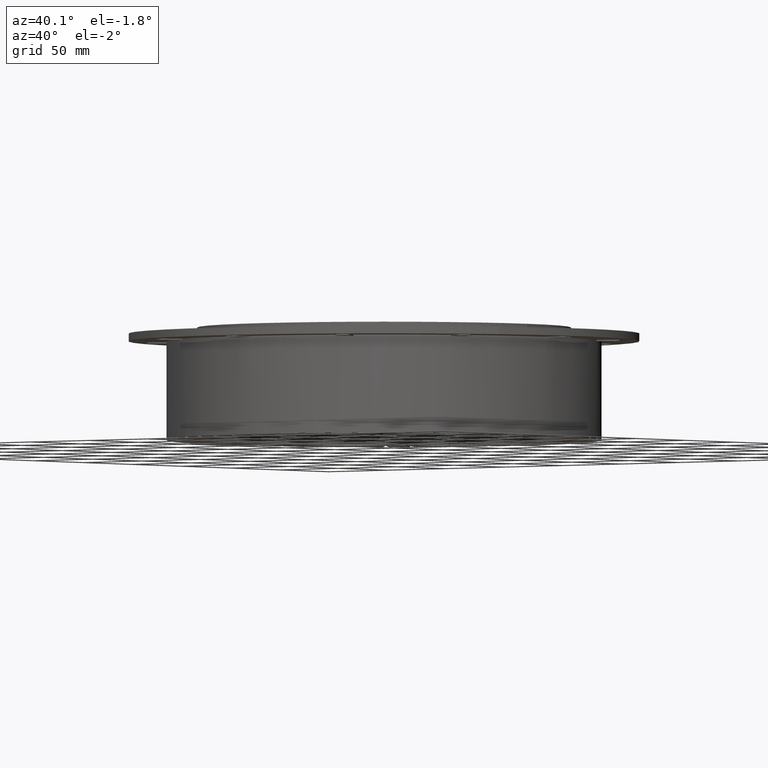
[diagram: clean part render]
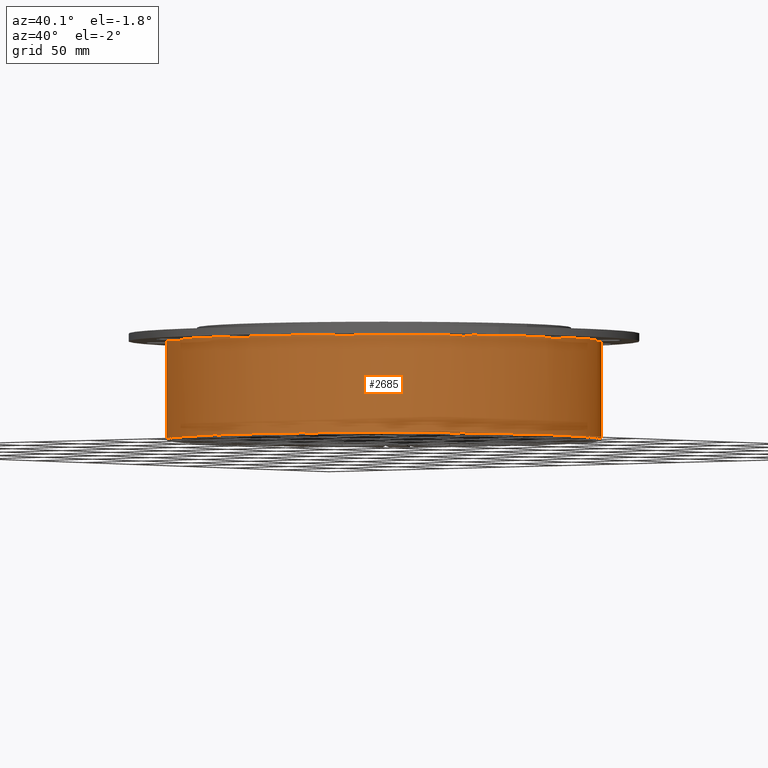
[diagram: same view with one face highlighted and labeled with its STEP entity id]
A machine part, auxiliary view. The second image highlights one B-rep face of the part: STEP entity #2685.
In plain terms, the highlighted cylindrical surface (bore or boss wall) has radius 142.5 mm, axis along (0, 0, 1).
Its self-contained STEP definition (entity closure, byte-faithful):
#489=CARTESIAN_POINT('',(10.993444810585837,142.07531161745382,-0.2));
#490=VERTEX_POINT('',#489);
#504=CARTESIAN_POINT('',(24.684627688725627,140.34571299426642,-0.2));
#505=VERTEX_POINT('',#504);
#506=CARTESIAN_POINT('',(0.0,0.0,-0.2));
#507=DIRECTION('',(0.0,0.0,-1.0));
#508=DIRECTION('',(0.125333233564304,0.992114701314478,0.0));
#509=AXIS2_PLACEMENT_3D('',#506,#507,#508);
#510=CIRCLE('',#509,142.49999999999997);
#511=EDGE_CURVE('',#490,#505,#510,.T.);
#544=CARTESIAN_POINT('',(24.684627688725627,140.34571299426642,0.0));
#545=VERTEX_POINT('',#544);
#546=CARTESIAN_POINT('',(24.684627688725627,140.34571299426642,0.0));
#547=DIRECTION('',(0.0,0.0,-1.0));
#548=VECTOR('',#547,0.2);
#549=LINE('',#546,#548);
#550=EDGE_CURVE('',#545,#505,#549,.T.);
#585=CARTESIAN_POINT('',(0.0,0.0,0.0));
#586=DIRECTION('',(0.0,0.0,1.0));
#587=DIRECTION('',(-1.0,0.0,0.0));
#588=AXIS2_PLACEMENT_3D('',#585,#586,#587);
#589=CYLINDRICAL_SURFACE('',#588,142.5);
#590=ORIENTED_EDGE('',*,*,#511,.F.);
#591=CARTESIAN_POINT('',(10.993444810585837,142.07531161745382,0.0));
#592=VERTEX_POINT('',#591);
#593=CARTESIAN_POINT('',(10.993444810585837,142.07531161745382,0.0));
#594=DIRECTION('',(0.0,0.0,-1.0));
#595=VECTOR('',#594,0.2);
#596=LINE('',#593,#595);
#597=EDGE_CURVE('',#592,#490,#596,.T.);
#598=ORIENTED_EDGE('',*,*,#597,.F.);
#599=CARTESIAN_POINT('',(6.899999999999979,142.332849335633,0.0));
#600=VERTEX_POINT('',#599);
#601=CARTESIAN_POINT('',(0.0,0.0,0.0));
#602=DIRECTION('',(0.0,0.0,-1.0));
#603=DIRECTION('',(-1.0,0.0,0.0));
#604=AXIS2_PLACEMENT_3D('',#601,#602,#603);
#605=CIRCLE('',#604,142.5);
#606=EDGE_CURVE('',#600,#592,#605,.T.);
#607=ORIENTED_EDGE('',*,*,#606,.F.);
#608=CARTESIAN_POINT('',(6.899999999999979,142.332849335633,-0.2));
#609=VERTEX_POINT('',#608);
#610=CARTESIAN_POINT('',(6.899999999999979,142.332849335633,0.0));
#611=DIRECTION('',(0.0,0.0,-1.0));
#612=VECTOR('',#611,0.2);
#613=LINE('',#610,#612);
#614=EDGE_CURVE('',#600,#609,#613,.T.);
#615=ORIENTED_EDGE('',*,*,#614,.T.);
#616=CARTESIAN_POINT('',(-6.900000000000017,142.332849335633,-0.2));
#617=VERTEX_POINT('',#616);
#618=CARTESIAN_POINT('',(0.0,0.0,-0.2));
#619=DIRECTION('',(0.0,0.0,-1.0));
#620=DIRECTION('',(0.0,1.0,0.0));
#621=AXIS2_PLACEMENT_3D('',#618,#619,#620);
#622=CIRCLE('',#621,142.5);
#623=EDGE_CURVE('',#617,#609,#622,.T.);
#624=ORIENTED_EDGE('',*,*,#623,.F.);
#625=CARTESIAN_POINT('',(-6.900000000000017,142.332849335633,0.0));
#626=VERTEX_POINT('',#625);
#627=CARTESIAN_POINT('',(-6.900000000000017,142.332849335633,0.0));
#628=DIRECTION('',(0.0,0.0,-1.0));
#629=VECTOR('',#628,0.2);
#630=LINE('',#627,#629);
#631=EDGE_CURVE('',#626,#617,#630,.T.);
#632=ORIENTED_EDGE('',*,*,#631,.F.);
#633=CARTESIAN_POINT('',(-10.993444810585942,142.07531161745379,0.0));
#634=VERTEX_POINT('',#633);
#635=CARTESIAN_POINT('',(0.0,0.0,0.0));
#636=DIRECTION('',(0.0,0.0,-1.0));
#637=DIRECTION('',(-1.0,0.0,0.0));
#638=AXIS2_PLACEMENT_3D('',#635,#636,#637);
#639=CIRCLE('',#638,142.5);
#640=EDGE_CURVE('',#634,#626,#639,.T.);
#641=ORIENTED_EDGE('',*,*,#640,.F.);
#642=CARTESIAN_POINT('',(-10.993444810585942,142.07531161745379,-0.2));
#643=VERTEX_POINT('',#642);
#644=CARTESIAN_POINT('',(-10.993444810585942,142.07531161745379,0.0));
#645=DIRECTION('',(0.0,0.0,-1.0));
#646=VECTOR('',#645,0.2);
#647=LINE('',#644,#646);
#648=EDGE_CURVE('',#634,#643,#647,.T.);
#649=ORIENTED_EDGE('',*,*,#648,.T.);
#650=CARTESIAN_POINT('',(-24.684627688725733,140.34571299426639,-0.2));
#651=VERTEX_POINT('',#650);
#652=CARTESIAN_POINT('',(0.0,0.0,-0.2));
#653=DIRECTION('',(0.0,0.0,-1.0));
#654=DIRECTION('',(-0.125333233564304,0.992114701314478,0.0));
#655=AXIS2_PLACEMENT_3D('',#652,#653,#654);
#656=CIRCLE('',#655,142.5);
#657=EDGE_CURVE('',#651,#643,#656,.T.);
#658=ORIENTED_EDGE('',*,*,#657,.F.);
#659=CARTESIAN_POINT('',(-24.684627688725733,140.34571299426639,0.0));
#660=VERTEX_POINT('',#659);
#661=CARTESIAN_POINT('',(-24.684627688725733,140.34571299426639,0.0));
#662=DIRECTION('',(0.0,0.0,-1.0));
#663=VECTOR('',#662,0.2);
#664=LINE('',#661,#663);
#665=EDGE_CURVE('',#660,#651,#664,.T.);
#666=ORIENTED_EDGE('',*,*,#665,.F.);
#667=CARTESIAN_POINT('',(-28.713516429343315,139.57716136339008,0.0));
#668=VERTEX_POINT('',#667);
#669=CARTESIAN_POINT('',(0.0,0.0,0.0));
#670=DIRECTION('',(0.0,0.0,-1.0));
#671=DIRECTION('',(-1.0,0.0,0.0));
#672=AXIS2_PLACEMENT_3D('',#669,#670,#671);
#673=CIRCLE('',#672,142.5);
#674=EDGE_CURVE('',#668,#660,#673,.T.);
#675=ORIENTED_EDGE('',*,*,#674,.F.);
#676=CARTESIAN_POINT('',(-28.713516429343315,139.57716136339008,-0.2));
#677=VERTEX_POINT('',#676);
#678=CARTESIAN_POINT('',(-28.713516429343315,139.57716136339008,0.0));
#679=DIRECTION('',(0.0,0.0,-1.0));
#680=VECTOR('',#679,0.2);
#681=LINE('',#678,#680);
#682=EDGE_CURVE('',#668,#677,#681,.T.);
#683=ORIENTED_EDGE('',*,*,#682,.T.);
#684=CARTESIAN_POINT('',(-42.079964052918427,136.14524092051508,-0.2));
#685=VERTEX_POINT('',#684);
#686=CARTESIAN_POINT('',(0.0,0.0,-0.2));
#687=DIRECTION('',(0.0,0.0,-1.0));
#688=DIRECTION('',(-0.248689887164855,0.968583161128631,0.0));
#689=AXIS2_PLACEMENT_3D('',#686,#687,#688);
#690=CIRCLE('',#689,142.5);
#691=EDGE_CURVE('',#685,#677,#690,.T.);
#692=ORIENTED_EDGE('',*,*,#691,.F.);
#693=CARTESIAN_POINT('',(-42.079964052918427,136.14524092051508,0.0));
#694=VERTEX_POINT('',#693);
#695=CARTESIAN_POINT('',(-42.079964052918427,136.14524092051508,0.0));
#696=DIRECTION('',(0.0,0.0,-1.0));
#697=VECTOR('',#696,0.2);
#698=LINE('',#695,#697);
#699=EDGE_CURVE('',#694,#685,#698,.T.);
#700=ORIENTED_EDGE('',*,*,#699,.F.);
#701=CARTESIAN_POINT('',(-45.980758741386651,134.87779589527108,0.0));
#702=VERTEX_POINT('',#701);
#703=CARTESIAN_POINT('',(0.0,0.0,0.0));
#704=DIRECTION('',(0.0,0.0,-1.0));
#705=DIRECTION('',(-1.0,0.0,0.0));
#706=AXIS2_PLACEMENT_3D('',#703,#704,#705);
#707=CIRCLE('',#706,142.5);
#708=EDGE_CURVE('',#702,#694,#707,.T.);
#709=ORIENTED_EDGE('',*,*,#708,.F.);
#710=CARTESIAN_POINT('',(-45.980758741386651,134.87779589527108,-0.2));
#711=VERTEX_POINT('',#710);
#712=CARTESIAN_POINT('',(-45.980758741386651,134.87779589527108,0.0));
#713=DIRECTION('',(0.0,0.0,-1.0));
#714=VECTOR('',#713,0.2);
#715=LINE('',#712,#714);
#716=EDGE_CURVE('',#702,#711,#715,.T.);
#717=ORIENTED_EDGE('',*,*,#716,.T.);
#718=CARTESIAN_POINT('',(-58.811674246644529,129.79767706822253,-0.2));
#719=VERTEX_POINT('',#718);
#720=CARTESIAN_POINT('',(0.0,0.0,-0.2));
#721=DIRECTION('',(0.0,0.0,-1.0));
#722=DIRECTION('',(-0.368124552684678,0.929776485888251,0.0));
#723=AXIS2_PLACEMENT_3D('',#720,#721,#722);
#724=CIRCLE('',#723,142.5);
#725=EDGE_CURVE('',#719,#711,#724,.T.);
#726=ORIENTED_EDGE('',*,*,#725,.F.);
#727=CARTESIAN_POINT('',(-58.811674246644529,129.79767706822253,0.0));
#728=VERTEX_POINT('',#727);
#729=CARTESIAN_POINT('',(-58.811674246644529,129.79767706822253,0.0));
#730=DIRECTION('',(0.0,0.0,-1.0));
#731=VECTOR('',#730,0.2);
#732=LINE('',#729,#731);
#733=EDGE_CURVE('',#728,#719,#732,.T.);
#734=ORIENTED_EDGE('',*,*,#733,.F.);
#735=CARTESIAN_POINT('',(-62.522857020504446,128.05132701379381,0.0));
#736=VERTEX_POINT('',#735);
#737=CARTESIAN_POINT('',(0.0,0.0,0.0));
#738=DIRECTION('',(0.0,0.0,-1.0));
#739=DIRECTION('',(-1.0,0.0,0.0));
#740=AXIS2_PLACEMENT_3D('',#737,#738,#739);
#741=CIRCLE('',#740,142.5);
#742=EDGE_CURVE('',#736,#728,#741,.T.);
#743=ORIENTED_EDGE('',*,*,#742,.F.);
#744=CARTESIAN_POINT('',(-62.522857020504446,128.05132701379381,-0.2));
#745=VERTEX_POINT('',#744);
#746=CARTESIAN_POINT('',(-62.522857020504446,128.05132701379381,0.0));
#747=DIRECTION('',(0.0,0.0,-1.0));
#748=VECTOR('',#747,0.2);
#749=LINE('',#746,#748);
#750=EDGE_CURVE('',#736,#745,#749,.T.);
#751=ORIENTED_EDGE('',*,*,#750,.T.);
#752=CARTESIAN_POINT('',(-74.615889205109781,121.40312631119015,-0.2));
#753=VERTEX_POINT('',#752);
#754=CARTESIAN_POINT('',(0.0,0.0,-0.2));
#755=DIRECTION('',(0.0,0.0,-1.0));
#756=DIRECTION('',(-0.481753674101715,0.876306680043863,0.0));
#757=AXIS2_PLACEMENT_3D('',#754,#755,#756);
#758=CIRCLE('',#757,142.5);
#759=EDGE_CURVE('',#753,#745,#758,.T.);
#760=ORIENTED_EDGE('',*,*,#759,.F.);
#761=CARTESIAN_POINT('',(-74.615889205109781,121.40312631119015,0.0));
#762=VERTEX_POINT('',#761);
#763=CARTESIAN_POINT('',(-74.615889205109781,121.40312631119015,0.0));
#764=DIRECTION('',(0.0,0.0,-1.0));
#765=VECTOR('',#764,0.2);
#766=LINE('',#763,#765);
#767=EDGE_CURVE('',#762,#753,#766,.T.);
#768=ORIENTED_EDGE('',*,*,#767,.F.);
#769=CARTESIAN_POINT('',(-78.078932495064478,119.20541221115411,0.0));
#770=VERTEX_POINT('',#769);
#771=CARTESIAN_POINT('',(0.0,0.0,0.0));
#772=DIRECTION('',(0.0,0.0,-1.0));
#773=DIRECTION('',(-1.0,0.0,0.0));
#774=AXIS2_PLACEMENT_3D('',#771,#772,#773);
#775=CIRCLE('',#774,142.5);
#776=EDGE_CURVE('',#770,#762,#775,.T.);
#777=ORIENTED_EDGE('',*,*,#776,.F.);
#778=CARTESIAN_POINT('',(-78.078932495064478,119.20541221115411,-0.2));
#779=VERTEX_POINT('',#778);
#780=CARTESIAN_POINT('',(-78.078932495064478,119.20541221115411,0.0));
#781=DIRECTION('',(0.0,0.0,-1.0));
#782=VECTOR('',#781,0.2);
#783=LINE('',#780,#782);
#784=EDGE_CURVE('',#770,#779,#783,.T.);
#785=ORIENTED_EDGE('',*,*,#784,.T.);
#786=CARTESIAN_POINT('',(-89.243367017438757,111.09397572951795,-0.2));
#787=VERTEX_POINT('',#786);
#788=CARTESIAN_POINT('',(0.0,0.0,-0.2));
#789=DIRECTION('',(0.0,0.0,-1.0));
#790=DIRECTION('',(-0.587785252292473,0.809016994374947,0.0));
#791=AXIS2_PLACEMENT_3D('',#788,#789,#790);
#792=CIRCLE('',#791,142.50000000000003);
#793=EDGE_CURVE('',#787,#779,#792,.T.);
#794=ORIENTED_EDGE('',*,*,#793,.F.);
#795=CARTESIAN_POINT('',(-89.243367017438757,111.09397572951795,0.0));
#796=VERTEX_POINT('',#795);
#797=CARTESIAN_POINT('',(-89.243367017438757,111.09397572951795,0.0));
#798=DIRECTION('',(0.0,0.0,-1.0));
#799=VECTOR('',#798,0.2);
#800=LINE('',#797,#799);
#801=EDGE_CURVE('',#796,#787,#800,.T.);
#802=ORIENTED_EDGE('',*,*,#801,.F.);
#803=CARTESIAN_POINT('',(-92.403656562083953,108.47955684808286,0.0));
#804=VERTEX_POINT('',#803);
#805=CARTESIAN_POINT('',(0.0,0.0,0.0));
#806=DIRECTION('',(0.0,0.0,-1.0));
#807=DIRECTION('',(-1.0,0.0,0.0));
#808=AXIS2_PLACEMENT_3D('',#805,#806,#807);
#809=CIRCLE('',#808,142.5);
#810=EDGE_CURVE('',#804,#796,#809,.T.);
#811=ORIENTED_EDGE('',*,*,#810,.F.);
#812=CARTESIAN_POINT('',(-92.403656562083953,108.47955684808286,-0.2));
#813=VERTEX_POINT('',#812);
#814=CARTESIAN_POINT('',(-92.403656562083953,108.47955684808286,0.0));
#815=DIRECTION('',(0.0,0.0,-1.0));
#816=VECTOR('',#815,0.2);
#817=LINE('',#814,#816);
#818=EDGE_CURVE('',#804,#813,#817,.T.);
#819=ORIENTED_EDGE('',*,*,#818,.T.);
#820=CARTESIAN_POINT('',(-102.46342362049943,99.032806786266988,-0.2));
#821=VERTEX_POINT('',#820);
#822=CARTESIAN_POINT('',(0.0,0.0,-0.2));
#823=DIRECTION('',(0.0,0.0,-1.0));
#824=DIRECTION('',(-0.684547105928689,0.728968627421411,0.0));
#825=AXIS2_PLACEMENT_3D('',#822,#823,#824);
#826=CIRCLE('',#825,142.49999999999997);
#827=EDGE_CURVE('',#821,#813,#826,.T.);
#828=ORIENTED_EDGE('',*,*,#827,.F.);
#829=CARTESIAN_POINT('',(-102.46342362049943,99.032806786266988,0.0));
#830=VERTEX_POINT('',#829);
#831=CARTESIAN_POINT('',(-102.46342362049943,99.032806786266988,0.0));
#832=DIRECTION('',(0.0,0.0,-1.0));
#833=VECTOR('',#832,0.2);
#834=LINE('',#831,#833);
#835=EDGE_CURVE('',#830,#821,#834,.T.);
#836=ORIENTED_EDGE('',*,*,#835,.F.);
#837=CARTESIAN_POINT('',(-105.2711197658505,96.042914070971278,0.0));
#838=VERTEX_POINT('',#837);
#839=CARTESIAN_POINT('',(0.0,0.0,0.0));
#840=DIRECTION('',(0.0,0.0,-1.0));
#841=DIRECTION('',(-1.0,0.0,0.0));
#842=AXIS2_PLACEMENT_3D('',#839,#840,#841);
#843=CIRCLE('',#842,142.5);
#844=EDGE_CURVE('',#838,#830,#843,.T.);
#845=ORIENTED_EDGE('',*,*,#844,.F.);
#846=CARTESIAN_POINT('',(-105.2711197658505,96.042914070971278,-0.2));
#847=VERTEX_POINT('',#846);
#848=CARTESIAN_POINT('',(-105.2711197658505,96.042914070971278,0.0));
#849=DIRECTION('',(0.0,0.0,-1.0));
#850=VECTOR('',#849,0.2);
#851=LINE('',#848,#850);
#852=EDGE_CURVE('',#838,#847,#851,.T.);
#853=ORIENTED_EDGE('',*,*,#852,.T.);
#854=CARTESIAN_POINT('',(-114.06757082438241,85.409831320665376,-0.2));
#855=VERTEX_POINT('',#854);
#856=CARTESIAN_POINT('',(0.0,0.0,-0.2));
#857=DIRECTION('',(0.0,0.0,-1.0));
#858=DIRECTION('',(-0.770513242775789,0.63742398974869,0.0));
#859=AXIS2_PLACEMENT_3D('',#856,#857,#858);
#860=CIRCLE('',#859,142.49999999999997);
#861=EDGE_CURVE('',#855,#847,#860,.T.);
#862=ORIENTED_EDGE('',*,*,#861,.F.);
#863=CARTESIAN_POINT('',(-114.06757082438241,85.409831320665376,0.0));
#864=VERTEX_POINT('',#863);
#865=CARTESIAN_POINT('',(-114.06757082438241,85.409831320665376,0.0));
#866=DIRECTION('',(0.0,0.0,-1.0));
#867=VECTOR('',#866,0.2);
#868=LINE('',#865,#867);
#869=EDGE_CURVE('',#864,#855,#868,.T.);
#870=ORIENTED_EDGE('',*,*,#869,.F.);
#871=CARTESIAN_POINT('',(-116.47839452499082,82.091617165704506,0.0));
#872=VERTEX_POINT('',#871);
#873=CARTESIAN_POINT('',(0.0,0.0,0.0));
#874=DIRECTION('',(0.0,0.0,-1.0));
#875=DIRECTION('',(-1.0,0.0,0.0));
#876=AXIS2_PLACEMENT_3D('',#873,#874,#875);
#877=CIRCLE('',#876,142.5);
#878=EDGE_CURVE('',#872,#864,#877,.T.);
#879=ORIENTED_EDGE('',*,*,#878,.F.);
#880=CARTESIAN_POINT('',(-116.47839452499082,82.091617165704506,-0.2));
#881=VERTEX_POINT('',#880);
#882=CARTESIAN_POINT('',(-116.47839452499082,82.091617165704506,0.0));
#883=DIRECTION('',(0.0,0.0,-1.0));
#884=VECTOR('',#883,0.2);
#885=LINE('',#882,#884);
#886=EDGE_CURVE('',#872,#881,#885,.T.);
#887=ORIENTED_EDGE('',*,*,#886,.T.);
#888=CARTESIAN_POINT('',(-123.87280429570096,70.43989179377671,-0.2));
#889=VERTEX_POINT('',#888);
#890=CARTESIAN_POINT('',(0.0,0.0,-0.2));
#891=DIRECTION('',(0.0,0.0,-1.0));
#892=DIRECTION('',(-0.844327925502015,0.535826794978997,0.0));
#893=AXIS2_PLACEMENT_3D('',#890,#891,#892);
#894=CIRCLE('',#893,142.5);
#895=EDGE_CURVE('',#889,#881,#894,.T.);
#896=ORIENTED_EDGE('',*,*,#895,.F.);
#897=CARTESIAN_POINT('',(-123.87280429570096,70.43989179377671,0.0));
#898=VERTEX_POINT('',#897);
#899=CARTESIAN_POINT('',(-123.87280429570096,70.43989179377671,0.0));
#900=DIRECTION('',(0.0,0.0,-1.0));
#901=VECTOR('',#900,0.2);
#902=LINE('',#899,#901);
#903=EDGE_CURVE('',#898,#889,#902,.T.);
#904=ORIENTED_EDGE('',*,*,#903,.F.);
#905=CARTESIAN_POINT('',(-125.84873542165187,66.845686418579561,0.0));
#906=VERTEX_POINT('',#905);
#907=CARTESIAN_POINT('',(0.0,0.0,0.0));
#908=DIRECTION('',(0.0,0.0,-1.0));
#909=DIRECTION('',(-1.0,0.0,0.0));
#910=AXIS2_PLACEMENT_3D('',#907,#908,#909);
#911=CIRCLE('',#910,142.5);
#912=EDGE_CURVE('',#906,#898,#911,.T.);
#913=ORIENTED_EDGE('',*,*,#912,.F.);
#914=CARTESIAN_POINT('',(-125.84873542165187,66.845686418579561,-0.2));
#915=VERTEX_POINT('',#914);
#916=CARTESIAN_POINT('',(-125.84873542165187,66.845686418579561,0.0));
#917=DIRECTION('',(0.0,0.0,-1.0));
#918=VECTOR('',#917,0.2);
#919=LINE('',#916,#918);
#920=EDGE_CURVE('',#906,#915,#919,.T.);
#921=ORIENTED_EDGE('',*,*,#920,.T.);
#922=CARTESIAN_POINT('',(-131.72448964524986,54.359073094548485,-0.2));
#923=VERTEX_POINT('',#922);
#924=CARTESIAN_POINT('',(0.0,0.0,-0.2));
#925=DIRECTION('',(0.0,0.0,-1.0));
#926=DIRECTION('',(-0.90482705246602,0.425779291565073,0.0));
#927=AXIS2_PLACEMENT_3D('',#924,#925,#926);
#928=CIRCLE('',#927,142.5);
#929=EDGE_CURVE('',#923,#915,#928,.T.);
#930=ORIENTED_EDGE('',*,*,#929,.F.);
#931=CARTESIAN_POINT('',(-131.72448964524986,54.359073094548485,0.0));
#932=VERTEX_POINT('',#931);
#933=CARTESIAN_POINT('',(-131.72448964524986,54.359073094548485,0.0));
#934=DIRECTION('',(0.0,0.0,-1.0));
#935=VECTOR('',#934,0.2);
#936=LINE('',#933,#935);
#937=EDGE_CURVE('',#932,#923,#936,.T.);
#938=ORIENTED_EDGE('',*,*,#937,.F.);
#939=CARTESIAN_POINT('',(-133.23436658232296,50.545559264956097,0.0));
#940=VERTEX_POINT('',#939);
#941=CARTESIAN_POINT('',(0.0,0.0,0.0));
#942=DIRECTION('',(0.0,0.0,-1.0));
#943=DIRECTION('',(-1.0,0.0,0.0));
#944=AXIS2_PLACEMENT_3D('',#941,#942,#943);
#945=CIRCLE('',#944,142.5);
#946=EDGE_CURVE('',#940,#932,#945,.T.);
#947=ORIENTED_EDGE('',*,*,#946,.F.);
#948=CARTESIAN_POINT('',(-133.23436658232296,50.545559264956097,-0.2));
#949=VERTEX_POINT('',#948);
#950=CARTESIAN_POINT('',(-133.23436658232296,50.545559264956097,0.0));
#951=DIRECTION('',(0.0,0.0,-1.0));
#952=VECTOR('',#951,0.2);
#953=LINE('',#950,#952);
#954=EDGE_CURVE('',#940,#949,#953,.T.);
#955=ORIENTED_EDGE('',*,*,#954,.T.);
#956=CARTESIAN_POINT('',(-137.49880110469724,37.420979340082987,-0.2));
#957=VERTEX_POINT('',#956);
#958=CARTESIAN_POINT('',(0.0,0.0,-0.2));
#959=DIRECTION('',(0.0,0.0,-1.0));
#960=DIRECTION('',(-0.951056516295154,0.309016994374947,0.0));
#961=AXIS2_PLACEMENT_3D('',#958,#959,#960);
#962=CIRCLE('',#961,142.49999999999997);
#963=EDGE_CURVE('',#957,#949,#962,.T.);
#964=ORIENTED_EDGE('',*,*,#963,.F.);
#965=CARTESIAN_POINT('',(-137.49880110469724,37.420979340082987,0.0));
#966=VERTEX_POINT('',#965);
#967=CARTESIAN_POINT('',(-137.49880110469724,37.420979340082987,0.0));
#968=DIRECTION('',(0.0,0.0,-1.0));
#969=VECTOR('',#968,0.2);
#970=LINE('',#967,#969);
#971=EDGE_CURVE('',#966,#957,#970,.T.);
#972=ORIENTED_EDGE('',*,*,#971,.F.);
#973=CARTESIAN_POINT('',(-138.51881219163812,33.448298447270716,0.0));
#974=VERTEX_POINT('',#973);
#975=CARTESIAN_POINT('',(0.0,0.0,0.0));
#976=DIRECTION('',(0.0,0.0,-1.0));
#977=DIRECTION('',(-1.0,0.0,0.0));
#978=AXIS2_PLACEMENT_3D('',#975,#976,#977);
#979=CIRCLE('',#978,142.5);
#980=EDGE_CURVE('',#974,#966,#979,.T.);
#981=ORIENTED_EDGE('',*,*,#980,.F.);
#982=CARTESIAN_POINT('',(-138.51881219163812,33.448298447270716,-0.2));
#983=VERTEX_POINT('',#982);
#984=CARTESIAN_POINT('',(-138.51881219163812,33.448298447270716,0.0));
#985=DIRECTION('',(0.0,0.0,-1.0));
#986=VECTOR('',#985,0.2);
#987=LINE('',#984,#986);
#988=EDGE_CURVE('',#974,#983,#987,.T.);
#989=ORIENTED_EDGE('',*,*,#988,.T.);
#990=CARTESIAN_POINT('',(-141.10467433292112,19.892734387214805,-0.2));
#991=VERTEX_POINT('',#990);
#992=CARTESIAN_POINT('',(0.0,0.0,-0.2));
#993=DIRECTION('',(0.0,0.0,-1.0));
#994=DIRECTION('',(-0.982287250728689,0.187381314585724,0.0));
#995=AXIS2_PLACEMENT_3D('',#992,#993,#994);
#996=CIRCLE('',#995,142.5);
#997=EDGE_CURVE('',#991,#983,#996,.T.);
#998=ORIENTED_EDGE('',*,*,#997,.F.);
#999=CARTESIAN_POINT('',(-141.10467433292112,19.892734387214805,0.0));
#1000=VERTEX_POINT('',#999);
#1001=CARTESIAN_POINT('',(-141.10467433292112,19.892734387214805,0.0));
#1002=DIRECTION('',(0.0,0.0,-1.0));
#1003=VECTOR('',#1002,0.2);
#1004=LINE('',#1001,#1003);
#1005=EDGE_CURVE('',#1000,#991,#1004,.T.);
#1006=ORIENTED_EDGE('',*,*,#1005,.F.);
#1007=CARTESIAN_POINT('',(-141.61873338556364,15.823537982026929,0.0));
#1008=VERTEX_POINT('',#1007);
#1009=CARTESIAN_POINT('',(0.0,0.0,0.0));
#1010=DIRECTION('',(0.0,0.0,-1.0));
#1011=DIRECTION('',(-1.0,0.0,0.0));
#1012=AXIS2_PLACEMENT_3D('',#1009,#1010,#1011);
#1013=CIRCLE('',#1012,142.5);
#1014=EDGE_CURVE('',#1008,#1000,#1013,.T.);
#1015=ORIENTED_EDGE('',*,*,#1014,.F.);
#1016=CARTESIAN_POINT('',(-141.61873338556364,15.823537982026929,-0.2));
#1017=VERTEX_POINT('',#1016);
#1018=CARTESIAN_POINT('',(-141.61873338556364,15.823537982026929,0.0));
#1019=DIRECTION('',(0.0,0.0,-1.0));
#1020=VECTOR('',#1019,0.2);
#1021=LINE('',#1018,#1020);
#1022=EDGE_CURVE('',#1008,#1017,#1021,.T.);
#1023=ORIENTED_EDGE('',*,*,#1022,.T.);
#1024=CARTESIAN_POINT('',(-142.48524255506817,2.050769129716783,-0.2));
#1025=VERTEX_POINT('',#1024);
#1026=CARTESIAN_POINT('',(0.0,0.0,-0.2));
#1027=DIRECTION('',(0.0,0.0,-1.0));
#1028=DIRECTION('',(-0.998026728428272,0.062790519529313,0.0));
#1029=AXIS2_PLACEMENT_3D('',#1026,#1027,#1028);
#1030=CIRCLE('',#1029,142.49999999999997);
#1031=EDGE_CURVE('',#1025,#1017,#1030,.T.);
#1032=ORIENTED_EDGE('',*,*,#1031,.F.);
#1033=CARTESIAN_POINT('',(-142.48524255506817,2.050769129716783,0.0));
#1034=VERTEX_POINT('',#1033);
#1035=CARTESIAN_POINT('',(-142.48524255506817,2.050769129716783,0.0));
#1036=DIRECTION('',(0.0,0.0,-1.0));
#1037=VECTOR('',#1036,0.2);
#1038=LINE('',#1035,#1037);
#1039=EDGE_CURVE('',#1034,#1025,#1038,.T.);
#1040=ORIENTED_EDGE('',*,*,#1039,.F.);
#1041=CARTESIAN_POINT('',(-142.48524255506814,-2.050769129716832,0.0));
#1042=VERTEX_POINT('',#1041);
#1043=CARTESIAN_POINT('',(0.0,0.0,0.0));
#1044=DIRECTION('',(0.0,0.0,-1.0));
#1045=DIRECTION('',(-1.0,0.0,0.0));
#1046=AXIS2_PLACEMENT_3D('',#1043,#1044,#1045);
#1047=CIRCLE('',#1046,142.5);
#1048=EDGE_CURVE('',#1042,#1034,#1047,.T.);
#1049=ORIENTED_EDGE('',*,*,#1048,.F.);
#1050=CARTESIAN_POINT('',(-142.48524255506814,-2.050769129716832,-0.2));
#1051=VERTEX_POINT('',#1050);
#1052=CARTESIAN_POINT('',(-142.48524255506814,-2.050769129716832,0.0));
#1053=DIRECTION('',(0.0,0.0,-1.0));
#1054=VECTOR('',#1053,0.2);
#1055=LINE('',#1052,#1054);
#1056=EDGE_CURVE('',#1042,#1051,#1055,.T.);
#1057=ORIENTED_EDGE('',*,*,#1056,.T.);
#1058=CARTESIAN_POINT('',(-141.61873338556364,-15.823537982026979,-0.2));
#1059=VERTEX_POINT('',#1058);
#1060=CARTESIAN_POINT('',(0.0,0.0,-0.2));
#1061=DIRECTION('',(0.0,0.0,-1.0));
#1062=DIRECTION('',(-0.998026728428272,-0.062790519529314,0.0));
#1063=AXIS2_PLACEMENT_3D('',#1060,#1061,#1062);
#1064=CIRCLE('',#1063,142.5);
#1065=EDGE_CURVE('',#1059,#1051,#1064,.T.);
#1066=ORIENTED_EDGE('',*,*,#1065,.F.);
#1067=CARTESIAN_POINT('',(-141.61873338556364,-15.823537982026979,0.0));
#1068=VERTEX_POINT('',#1067);
#1069=CARTESIAN_POINT('',(-141.61873338556364,-15.823537982026979,0.0));
#1070=DIRECTION('',(0.0,0.0,-1.0));
#1071=VECTOR('',#1070,0.2);
#1072=LINE('',#1069,#1071);
#1073=EDGE_CURVE('',#1068,#1059,#1072,.T.);
#1074=ORIENTED_EDGE('',*,*,#1073,.F.);
#1075=CARTESIAN_POINT('',(-141.10467433292112,-19.892734387214894,0.0));
#1076=VERTEX_POINT('',#1075);
#1077=CARTESIAN_POINT('',(0.0,0.0,0.0));
#1078=DIRECTION('',(0.0,0.0,-1.0));
#1079=DIRECTION('',(-1.0,0.0,0.0));
#1080=AXIS2_PLACEMENT_3D('',#1077,#1078,#1079);
#1081=CIRCLE('',#1080,142.5);
#1082=EDGE_CURVE('',#1076,#1068,#1081,.T.);
#1083=ORIENTED_EDGE('',*,*,#1082,.F.);
#1084=CARTESIAN_POINT('',(-141.10467433292112,-19.892734387214894,-0.2));
#1085=VERTEX_POINT('',#1084);
#1086=CARTESIAN_POINT('',(-141.10467433292112,-19.892734387214894,0.0));
#1087=DIRECTION('',(0.0,0.0,-1.0));
#1088=VECTOR('',#1087,0.2);
#1089=LINE('',#1086,#1088);
#1090=EDGE_CURVE('',#1076,#1085,#1089,.T.);
#1091=ORIENTED_EDGE('',*,*,#1090,.T.);
#1092=CARTESIAN_POINT('',(-138.51881219163806,-33.448298447270794,-0.2));
#1093=VERTEX_POINT('',#1092);
#1094=CARTESIAN_POINT('',(0.0,0.0,-0.2));
#1095=DIRECTION('',(0.0,0.0,-1.0));
#1096=DIRECTION('',(-0.982287250728689,-0.187381314585725,0.0));
#1097=AXIS2_PLACEMENT_3D('',#1094,#1095,#1096);
#1098=CIRCLE('',#1097,142.5);
#1099=EDGE_CURVE('',#1093,#1085,#1098,.T.);
#1100=ORIENTED_EDGE('',*,*,#1099,.F.);
#1101=CARTESIAN_POINT('',(-138.51881219163806,-33.448298447270794,0.0));
#1102=VERTEX_POINT('',#1101);
#1103=CARTESIAN_POINT('',(-138.51881219163806,-33.448298447270794,0.0));
#1104=DIRECTION('',(0.0,0.0,-1.0));
#1105=VECTOR('',#1104,0.2);
#1106=LINE('',#1103,#1105);
#1107=EDGE_CURVE('',#1102,#1093,#1106,.T.);
#1108=ORIENTED_EDGE('',*,*,#1107,.F.);
#1109=CARTESIAN_POINT('',(-137.49880110469721,-37.420979340083022,0.0));
#1110=VERTEX_POINT('',#1109);
#1111=CARTESIAN_POINT('',(0.0,0.0,0.0));
#1112=DIRECTION('',(0.0,0.0,-1.0));
#1113=DIRECTION('',(-1.0,0.0,0.0));
#1114=AXIS2_PLACEMENT_3D('',#1111,#1112,#1113);
#1115=CIRCLE('',#1114,142.5);
#1116=EDGE_CURVE('',#1110,#1102,#1115,.T.);
#1117=ORIENTED_EDGE('',*,*,#1116,.F.);
#1118=CARTESIAN_POINT('',(-137.49880110469721,-37.420979340083022,-0.2));
#1119=VERTEX_POINT('',#1118);
#1120=CARTESIAN_POINT('',(-137.49880110469721,-37.420979340083022,0.0));
#1121=DIRECTION('',(0.0,0.0,-1.0));
#1122=VECTOR('',#1121,0.2);
#1123=LINE('',#1120,#1122);
#1124=EDGE_CURVE('',#1110,#1119,#1123,.T.);
#1125=ORIENTED_EDGE('',*,*,#1124,.T.);
#1126=CARTESIAN_POINT('',(-133.23436658232293,-50.545559264956132,-0.2));
#1127=VERTEX_POINT('',#1126);
#1128=CARTESIAN_POINT('',(0.0,0.0,-0.2));
#1129=DIRECTION('',(0.0,0.0,-1.0));
#1130=DIRECTION('',(-0.951056516295153,-0.309016994374948,0.0));
#1131=AXIS2_PLACEMENT_3D('',#1128,#1129,#1130);
#1132=CIRCLE('',#1131,142.49999999999997);
#1133=EDGE_CURVE('',#1127,#1119,#1132,.T.);
#1134=ORIENTED_EDGE('',*,*,#1133,.F.);
#1135=CARTESIAN_POINT('',(-133.23436658232293,-50.545559264956132,0.0));
#1136=VERTEX_POINT('',#1135);
#1137=CARTESIAN_POINT('',(-133.23436658232293,-50.545559264956132,0.0));
#1138=DIRECTION('',(0.0,0.0,-1.0));
#1139=VECTOR('',#1138,0.2);
#1140=LINE('',#1137,#1139);
#1141=EDGE_CURVE('',#1136,#1127,#1140,.T.);
#1142=ORIENTED_EDGE('',*,*,#1141,.F.);
#1143=CARTESIAN_POINT('',(-131.72448964524986,-54.359073094548535,0.0));
#1144=VERTEX_POINT('',#1143);
#1145=CARTESIAN_POINT('',(0.0,0.0,0.0));
#1146=DIRECTION('',(0.0,0.0,-1.0));
#1147=DIRECTION('',(-1.0,0.0,0.0));
#1148=AXIS2_PLACEMENT_3D('',#1145,#1146,#1147);
#1149=CIRCLE('',#1148,142.5);
#1150=EDGE_CURVE('',#1144,#1136,#1149,.T.);
#1151=ORIENTED_EDGE('',*,*,#1150,.F.);
#1152=CARTESIAN_POINT('',(-131.72448964524986,-54.359073094548535,-0.2));
#1153=VERTEX_POINT('',#1152);
#1154=CARTESIAN_POINT('',(-131.72448964524986,-54.359073094548535,0.0));
#1155=DIRECTION('',(0.0,0.0,-1.0));
#1156=VECTOR('',#1155,0.2);
#1157=LINE('',#1154,#1156);
#1158=EDGE_CURVE('',#1144,#1153,#1157,.T.);
#1159=ORIENTED_EDGE('',*,*,#1158,.T.);
#1160=CARTESIAN_POINT('',(-125.84873542165184,-66.845686418579618,-0.2));
#1161=VERTEX_POINT('',#1160);
#1162=CARTESIAN_POINT('',(0.0,0.0,-0.2));
#1163=DIRECTION('',(0.0,0.0,-1.0));
#1164=DIRECTION('',(-0.904827052466019,-0.425779291565073,0.0));
#1165=AXIS2_PLACEMENT_3D('',#1162,#1163,#1164);
#1166=CIRCLE('',#1165,142.49999999999997);
#1167=EDGE_CURVE('',#1161,#1153,#1166,.T.);
#1168=ORIENTED_EDGE('',*,*,#1167,.F.);
#1169=CARTESIAN_POINT('',(-125.84873542165184,-66.845686418579618,0.0));
#1170=VERTEX_POINT('',#1169);
#1171=CARTESIAN_POINT('',(-125.84873542165184,-66.845686418579618,0.0));
#1172=DIRECTION('',(0.0,0.0,-1.0));
#1173=VECTOR('',#1172,0.2);
#1174=LINE('',#1171,#1173);
#1175=EDGE_CURVE('',#1170,#1161,#1174,.T.);
#1176=ORIENTED_EDGE('',*,*,#1175,.F.);
#1177=CARTESIAN_POINT('',(-123.87280429570092,-70.439891793776781,0.0));
#1178=VERTEX_POINT('',#1177);
#1179=CARTESIAN_POINT('',(0.0,0.0,0.0));
#1180=DIRECTION('',(0.0,0.0,-1.0));
#1181=DIRECTION('',(-1.0,0.0,0.0));
#1182=AXIS2_PLACEMENT_3D('',#1179,#1180,#1181);
#1183=CIRCLE('',#1182,142.5);
#1184=EDGE_CURVE('',#1178,#1170,#1183,.T.);
#1185=ORIENTED_EDGE('',*,*,#1184,.F.);
#1186=CARTESIAN_POINT('',(-123.87280429570092,-70.439891793776781,-0.2));
#1187=VERTEX_POINT('',#1186);
#1188=CARTESIAN_POINT('',(-123.87280429570092,-70.439891793776781,0.0));
#1189=DIRECTION('',(0.0,0.0,-1.0));
#1190=VECTOR('',#1189,0.2);
#1191=LINE('',#1188,#1190);
#1192=EDGE_CURVE('',#1178,#1187,#1191,.T.);
#1193=ORIENTED_EDGE('',*,*,#1192,.T.);
#1194=CARTESIAN_POINT('',(-116.47839452499078,-82.091617165704577,-0.2));
#1195=VERTEX_POINT('',#1194);
#1196=CARTESIAN_POINT('',(0.0,0.0,-0.2));
#1197=DIRECTION('',(0.0,0.0,-1.0));
#1198=DIRECTION('',(-0.844327925502015,-0.535826794978997,0.0));
#1199=AXIS2_PLACEMENT_3D('',#1196,#1197,#1198);
#1200=CIRCLE('',#1199,142.5);
#1201=EDGE_CURVE('',#1195,#1187,#1200,.T.);
#1202=ORIENTED_EDGE('',*,*,#1201,.F.);
#1203=CARTESIAN_POINT('',(-116.47839452499078,-82.091617165704577,0.0));
#1204=VERTEX_POINT('',#1203);
#1205=CARTESIAN_POINT('',(-116.47839452499078,-82.091617165704577,0.0));
#1206=DIRECTION('',(0.0,0.0,-1.0));
#1207=VECTOR('',#1206,0.2);
#1208=LINE('',#1205,#1207);
#1209=EDGE_CURVE('',#1204,#1195,#1208,.T.);
#1210=ORIENTED_EDGE('',*,*,#1209,.F.);
#1211=CARTESIAN_POINT('',(-114.06757082438236,-85.409831320665404,0.0));
#1212=VERTEX_POINT('',#1211);
#1213=CARTESIAN_POINT('',(0.0,0.0,0.0));
#1214=DIRECTION('',(0.0,0.0,-1.0));
#1215=DIRECTION('',(-1.0,0.0,0.0));
#1216=AXIS2_PLACEMENT_3D('',#1213,#1214,#1215);
#1217=CIRCLE('',#1216,142.5);
#1218=EDGE_CURVE('',#1212,#1204,#1217,.T.);
#1219=ORIENTED_EDGE('',*,*,#1218,.F.);
#1220=CARTESIAN_POINT('',(-114.06757082438236,-85.409831320665404,-0.2));
#1221=VERTEX_POINT('',#1220);
#1222=CARTESIAN_POINT('',(-114.06757082438236,-85.409831320665404,0.0));
#1223=DIRECTION('',(0.0,0.0,-1.0));
#1224=VECTOR('',#1223,0.2);
#1225=LINE('',#1222,#1224);
#1226=EDGE_CURVE('',#1212,#1221,#1225,.T.);
#1227=ORIENTED_EDGE('',*,*,#1226,.T.);
#1228=CARTESIAN_POINT('',(-105.27111976585046,-96.042914070971293,-0.2));
#1229=VERTEX_POINT('',#1228);
#1230=CARTESIAN_POINT('',(0.0,0.0,-0.2));
#1231=DIRECTION('',(0.0,0.0,-1.0));
#1232=DIRECTION('',(-0.770513242775789,-0.63742398974869,0.0));
#1233=AXIS2_PLACEMENT_3D('',#1230,#1231,#1232);
#1234=CIRCLE('',#1233,142.50000000000003);
#1235=EDGE_CURVE('',#1229,#1221,#1234,.T.);
#1236=ORIENTED_EDGE('',*,*,#1235,.F.);
#1237=CARTESIAN_POINT('',(-105.27111976585046,-96.042914070971293,0.0));
#1238=VERTEX_POINT('',#1237);
#1239=CARTESIAN_POINT('',(-105.27111976585046,-96.042914070971293,0.0));
#1240=DIRECTION('',(0.0,0.0,-1.0));
#1241=VECTOR('',#1240,0.2);
#1242=LINE('',#1239,#1241);
#1243=EDGE_CURVE('',#1238,#1229,#1242,.T.);
#1244=ORIENTED_EDGE('',*,*,#1243,.F.);
#1245=CARTESIAN_POINT('',(-102.46342362049936,-99.032806786267031,0.0));
#1246=VERTEX_POINT('',#1245);
#1247=CARTESIAN_POINT('',(0.0,0.0,0.0));
#1248=DIRECTION('',(0.0,0.0,-1.0));
#1249=DIRECTION('',(-1.0,0.0,0.0));
#1250=AXIS2_PLACEMENT_3D('',#1247,#1248,#1249);
#1251=CIRCLE('',#1250,142.5);
#1252=EDGE_CURVE('',#1246,#1238,#1251,.T.);
#1253=ORIENTED_EDGE('',*,*,#1252,.F.);
#1254=CARTESIAN_POINT('',(-102.46342362049936,-99.032806786267031,-0.2));
#1255=VERTEX_POINT('',#1254);
#1256=CARTESIAN_POINT('',(-102.46342362049936,-99.032806786267031,0.0));
#1257=DIRECTION('',(0.0,0.0,-1.0));
#1258=VECTOR('',#1257,0.2);
#1259=LINE('',#1256,#1258);
#1260=EDGE_CURVE('',#1246,#1255,#1259,.T.);
#1261=ORIENTED_EDGE('',*,*,#1260,.T.);
#1262=CARTESIAN_POINT('',(-92.403656562083881,-108.47955684808295,-0.2));
#1263=VERTEX_POINT('',#1262);
#1264=CARTESIAN_POINT('',(0.0,0.0,-0.2));
#1265=DIRECTION('',(0.0,0.0,-1.0));
#1266=DIRECTION('',(-0.684547105928688,-0.728968627421412,0.0));
#1267=AXIS2_PLACEMENT_3D('',#1264,#1265,#1266);
#1268=CIRCLE('',#1267,142.5);
#1269=EDGE_CURVE('',#1263,#1255,#1268,.T.);
#1270=ORIENTED_EDGE('',*,*,#1269,.F.);
#1271=CARTESIAN_POINT('',(-92.403656562083881,-108.47955684808295,0.0));
#1272=VERTEX_POINT('',#1271);
#1273=CARTESIAN_POINT('',(-92.403656562083881,-108.47955684808295,0.0));
#1274=DIRECTION('',(0.0,0.0,-1.0));
#1275=VECTOR('',#1274,0.2);
#1276=LINE('',#1273,#1275);
#1277=EDGE_CURVE('',#1272,#1263,#1276,.T.);
#1278=ORIENTED_EDGE('',*,*,#1277,.F.);
#1279=CARTESIAN_POINT('',(-89.243367017438715,-111.09397572951798,0.0));
#1280=VERTEX_POINT('',#1279);
#1281=CARTESIAN_POINT('',(0.0,0.0,0.0));
#1282=DIRECTION('',(0.0,0.0,-1.0));
#1283=DIRECTION('',(-1.0,0.0,0.0));
#1284=AXIS2_PLACEMENT_3D('',#1281,#1282,#1283);
#1285=CIRCLE('',#1284,142.5);
#1286=EDGE_CURVE('',#1280,#1272,#1285,.T.);
#1287=ORIENTED_EDGE('',*,*,#1286,.F.);
#1288=CARTESIAN_POINT('',(-89.243367017438715,-111.09397572951798,-0.2));
#1289=VERTEX_POINT('',#1288);
#1290=CARTESIAN_POINT('',(-89.243367017438715,-111.09397572951798,0.0));
#1291=DIRECTION('',(0.0,0.0,-1.0));
#1292=VECTOR('',#1291,0.2);
#1293=LINE('',#1290,#1292);
#1294=EDGE_CURVE('',#1280,#1289,#1293,.T.);
#1295=ORIENTED_EDGE('',*,*,#1294,.T.);
#1296=CARTESIAN_POINT('',(-78.078932495064464,-119.20541221115413,-0.2));
#1297=VERTEX_POINT('',#1296);
#1298=CARTESIAN_POINT('',(0.0,0.0,-0.2));
#1299=DIRECTION('',(0.0,0.0,-1.0));
#1300=DIRECTION('',(-0.587785252292473,-0.809016994374948,0.0));
#1301=AXIS2_PLACEMENT_3D('',#1298,#1299,#1300);
#1302=CIRCLE('',#1301,142.5);
#1303=EDGE_CURVE('',#1297,#1289,#1302,.T.);
#1304=ORIENTED_EDGE('',*,*,#1303,.F.);
#1305=CARTESIAN_POINT('',(-78.078932495064464,-119.20541221115413,0.0));
#1306=VERTEX_POINT('',#1305);
#1307=CARTESIAN_POINT('',(-78.078932495064464,-119.20541221115413,0.0));
#1308=DIRECTION('',(0.0,0.0,-1.0));
#1309=VECTOR('',#1308,0.2);
#1310=LINE('',#1307,#1309);
#1311=EDGE_CURVE('',#1306,#1297,#1310,.T.);
#1312=ORIENTED_EDGE('',*,*,#1311,.F.);
#1313=CARTESIAN_POINT('',(-74.615889205109724,-121.40312631119018,0.0));
#1314=VERTEX_POINT('',#1313);
#1315=CARTESIAN_POINT('',(0.0,0.0,0.0));
#1316=DIRECTION('',(0.0,0.0,-1.0));
#1317=DIRECTION('',(-1.0,0.0,0.0));
#1318=AXIS2_PLACEMENT_3D('',#1315,#1316,#1317);
#1319=CIRCLE('',#1318,142.5);
#1320=EDGE_CURVE('',#1314,#1306,#1319,.T.);
#1321=ORIENTED_EDGE('',*,*,#1320,.F.);
#1322=CARTESIAN_POINT('',(-74.615889205109724,-121.40312631119018,-0.2));
#1323=VERTEX_POINT('',#1322);
#1324=CARTESIAN_POINT('',(-74.615889205109724,-121.40312631119018,0.0));
#1325=DIRECTION('',(0.0,0.0,-1.0));
#1326=VECTOR('',#1325,0.2);
#1327=LINE('',#1324,#1326);
#1328=EDGE_CURVE('',#1314,#1323,#1327,.T.);
#1329=ORIENTED_EDGE('',*,*,#1328,.T.);
#1330=CARTESIAN_POINT('',(-62.522857020504404,-128.05132701379384,-0.2));
#1331=VERTEX_POINT('',#1330);
#1332=CARTESIAN_POINT('',(0.0,0.0,-0.2));
#1333=DIRECTION('',(0.0,0.0,-1.0));
#1334=DIRECTION('',(-0.481753674101715,-0.876306680043864,0.0));
#1335=AXIS2_PLACEMENT_3D('',#1332,#1333,#1334);
#1336=CIRCLE('',#1335,142.49999999999997);
#1337=EDGE_CURVE('',#1331,#1323,#1336,.T.);
#1338=ORIENTED_EDGE('',*,*,#1337,.F.);
#1339=CARTESIAN_POINT('',(-62.522857020504404,-128.05132701379384,0.0));
#1340=VERTEX_POINT('',#1339);
#1341=CARTESIAN_POINT('',(-62.522857020504404,-128.05132701379384,0.0));
#1342=DIRECTION('',(0.0,0.0,-1.0));
#1343=VECTOR('',#1342,0.2);
#1344=LINE('',#1341,#1343);
#1345=EDGE_CURVE('',#1340,#1331,#1344,.T.);
#1346=ORIENTED_EDGE('',*,*,#1345,.F.);
#1347=CARTESIAN_POINT('',(-58.811674246644458,-129.79767706822253,0.0));
#1348=VERTEX_POINT('',#1347);
#1349=CARTESIAN_POINT('',(0.0,0.0,0.0));
#1350=DIRECTION('',(0.0,0.0,-1.0));
#1351=DIRECTION('',(-1.0,0.0,0.0));
#1352=AXIS2_PLACEMENT_3D('',#1349,#1350,#1351);
#1353=CIRCLE('',#1352,142.5);
#1354=EDGE_CURVE('',#1348,#1340,#1353,.T.);
#1355=ORIENTED_EDGE('',*,*,#1354,.F.);
#1356=CARTESIAN_POINT('',(-58.811674246644458,-129.79767706822253,-0.2));
#1357=VERTEX_POINT('',#1356);
#1358=CARTESIAN_POINT('',(-58.811674246644458,-129.79767706822253,0.0));
#1359=DIRECTION('',(0.0,0.0,-1.0));
#1360=VECTOR('',#1359,0.2);
#1361=LINE('',#1358,#1360);
#1362=EDGE_CURVE('',#1348,#1357,#1361,.T.);
#1363=ORIENTED_EDGE('',*,*,#1362,.T.);
#1364=CARTESIAN_POINT('',(-45.98075874138658,-134.87779589527108,-0.2));
#1365=VERTEX_POINT('',#1364);
#1366=CARTESIAN_POINT('',(0.0,0.0,-0.2));
#1367=DIRECTION('',(0.0,0.0,-1.0));
#1368=DIRECTION('',(-0.368124552684678,-0.929776485888252,0.0));
#1369=AXIS2_PLACEMENT_3D('',#1366,#1367,#1368);
#1370=CIRCLE('',#1369,142.5);
#1371=EDGE_CURVE('',#1365,#1357,#1370,.T.);
#1372=ORIENTED_EDGE('',*,*,#1371,.F.);
#1373=CARTESIAN_POINT('',(-45.98075874138658,-134.87779589527108,0.0));
#1374=VERTEX_POINT('',#1373);
#1375=CARTESIAN_POINT('',(-45.98075874138658,-134.87779589527108,0.0));
#1376=DIRECTION('',(0.0,0.0,-1.0));
#1377=VECTOR('',#1376,0.2);
#1378=LINE('',#1375,#1377);
#1379=EDGE_CURVE('',#1374,#1365,#1378,.T.);
#1380=ORIENTED_EDGE('',*,*,#1379,.F.);
#1381=CARTESIAN_POINT('',(-42.079964052918399,-136.14524092051514,0.0));
#1382=VERTEX_POINT('',#1381);
#1383=CARTESIAN_POINT('',(0.0,0.0,0.0));
#1384=DIRECTION('',(0.0,0.0,-1.0));
#1385=DIRECTION('',(-1.0,0.0,0.0));
#1386=AXIS2_PLACEMENT_3D('',#1383,#1384,#1385);
#1387=CIRCLE('',#1386,142.5);
#1388=EDGE_CURVE('',#1382,#1374,#1387,.T.);
#1389=ORIENTED_EDGE('',*,*,#1388,.F.);
#1390=CARTESIAN_POINT('',(-42.079964052918399,-136.14524092051514,-0.2));
#1391=VERTEX_POINT('',#1390);
#1392=CARTESIAN_POINT('',(-42.079964052918399,-136.14524092051514,0.0));
#1393=DIRECTION('',(0.0,0.0,-1.0));
#1394=VECTOR('',#1393,0.2);
#1395=LINE('',#1392,#1394);
#1396=EDGE_CURVE('',#1382,#1391,#1395,.T.);
#1397=ORIENTED_EDGE('',*,*,#1396,.T.);
#1398=CARTESIAN_POINT('',(-28.713516429343283,-139.5771613633901,-0.2));
#1399=VERTEX_POINT('',#1398);
#1400=CARTESIAN_POINT('',(0.0,0.0,-0.2));
#1401=DIRECTION('',(0.0,0.0,-1.0));
#1402=DIRECTION('',(-0.248689887164855,-0.968583161128631,0.0));
#1403=AXIS2_PLACEMENT_3D('',#1400,#1401,#1402);
#1404=CIRCLE('',#1403,142.5);
#1405=EDGE_CURVE('',#1399,#1391,#1404,.T.);
#1406=ORIENTED_EDGE('',*,*,#1405,.F.);
#1407=CARTESIAN_POINT('',(-28.713516429343283,-139.5771613633901,0.0));
#1408=VERTEX_POINT('',#1407);
#1409=CARTESIAN_POINT('',(-28.713516429343283,-139.5771613633901,0.0));
#1410=DIRECTION('',(0.0,0.0,-1.0));
#1411=VECTOR('',#1410,0.2);
#1412=LINE('',#1409,#1411);
#1413=EDGE_CURVE('',#1408,#1399,#1412,.T.);
#1414=ORIENTED_EDGE('',*,*,#1413,.F.);
#1415=CARTESIAN_POINT('',(-24.684627688725669,-140.34571299426642,0.0));
#1416=VERTEX_POINT('',#1415);
#1417=CARTESIAN_POINT('',(0.0,0.0,0.0));
#1418=DIRECTION('',(0.0,0.0,-1.0));
#1419=DIRECTION('',(-1.0,0.0,0.0));
#1420=AXIS2_PLACEMENT_3D('',#1417,#1418,#1419);
#1421=CIRCLE('',#1420,142.5);
#1422=EDGE_CURVE('',#1416,#1408,#1421,.T.);
#1423=ORIENTED_EDGE('',*,*,#1422,.F.);
#1424=CARTESIAN_POINT('',(-24.684627688725669,-140.34571299426642,-0.2));
#1425=VERTEX_POINT('',#1424);
#1426=CARTESIAN_POINT('',(-24.684627688725669,-140.34571299426642,0.0));
#1427=DIRECTION('',(0.0,0.0,-1.0));
#1428=VECTOR('',#1427,0.2);
#1429=LINE('',#1426,#1428);
#1430=EDGE_CURVE('',#1416,#1425,#1429,.T.);
#1431=ORIENTED_EDGE('',*,*,#1430,.T.);
#1432=CARTESIAN_POINT('',(-10.993444810585878,-142.07531161745382,-0.2));
#1433=VERTEX_POINT('',#1432);
#1434=CARTESIAN_POINT('',(0.0,0.0,-0.2));
#1435=DIRECTION('',(0.0,0.0,-1.0));
#1436=DIRECTION('',(-0.125333233564304,-0.992114701314478,0.0));
#1437=AXIS2_PLACEMENT_3D('',#1434,#1435,#1436);
#1438=CIRCLE('',#1437,142.5);
#1439=EDGE_CURVE('',#1433,#1425,#1438,.T.);
#1440=ORIENTED_EDGE('',*,*,#1439,.F.);
#1441=CARTESIAN_POINT('',(-10.993444810585878,-142.07531161745382,0.0));
#1442=VERTEX_POINT('',#1441);
#1443=CARTESIAN_POINT('',(-10.993444810585878,-142.07531161745382,0.0));
#1444=DIRECTION('',(0.0,0.0,-1.0));
#1445=VECTOR('',#1444,0.2);
#1446=LINE('',#1443,#1445);
#1447=EDGE_CURVE('',#1442,#1433,#1446,.T.);
#1448=ORIENTED_EDGE('',*,*,#1447,.F.);
#1449=CARTESIAN_POINT('',(-6.89999999999994,-142.332849335633,0.0));
#1450=VERTEX_POINT('',#1449);
#1451=CARTESIAN_POINT('',(0.0,0.0,0.0));
#1452=DIRECTION('',(0.0,0.0,-1.0));
#1453=DIRECTION('',(-1.0,0.0,0.0));
#1454=AXIS2_PLACEMENT_3D('',#1451,#1452,#1453);
#1455=CIRCLE('',#1454,142.5);
#1456=EDGE_CURVE('',#1450,#1442,#1455,.T.);
#1457=ORIENTED_EDGE('',*,*,#1456,.F.);
#1458=CARTESIAN_POINT('',(-6.89999999999994,-142.332849335633,-0.2));
#1459=VERTEX_POINT('',#1458);
#1460=CARTESIAN_POINT('',(-6.89999999999994,-142.332849335633,0.0));
#1461=DIRECTION('',(0.0,0.0,-1.0));
#1462=VECTOR('',#1461,0.2);
#1463=LINE('',#1460,#1462);
#1464=EDGE_CURVE('',#1450,#1459,#1463,.T.);
#1465=ORIENTED_EDGE('',*,*,#1464,.T.);
#1466=CARTESIAN_POINT('',(6.900000000000062,-142.332849335633,-0.2));
#1467=VERTEX_POINT('',#1466);
#1468=CARTESIAN_POINT('',(0.0,0.0,-0.2));
#1469=DIRECTION('',(0.0,0.0,-1.0));
#1470=DIRECTION('',(0.0,-1.0,0.0));
#1471=AXIS2_PLACEMENT_3D('',#1468,#1469,#1470);
#1472=CIRCLE('',#1471,142.5);
#1473=EDGE_CURVE('',#1467,#1459,#1472,.T.);
#1474=ORIENTED_EDGE('',*,*,#1473,.F.);
#1475=CARTESIAN_POINT('',(6.900000000000062,-142.332849335633,0.0));
#1476=VERTEX_POINT('',#1475);
#1477=CARTESIAN_POINT('',(6.900000000000062,-142.332849335633,0.0));
#1478=DIRECTION('',(0.0,0.0,-1.0));
#1479=VECTOR('',#1478,0.2);
#1480=LINE('',#1477,#1479);
#1481=EDGE_CURVE('',#1476,#1467,#1480,.T.);
#1482=ORIENTED_EDGE('',*,*,#1481,.F.);
#1483=CARTESIAN_POINT('',(10.993444810585945,-142.07531161745379,0.0));
#1484=VERTEX_POINT('',#1483);
#1485=CARTESIAN_POINT('',(0.0,0.0,0.0));
#1486=DIRECTION('',(0.0,0.0,-1.0));
#1487=DIRECTION('',(-1.0,0.0,0.0));
#1488=AXIS2_PLACEMENT_3D('',#1485,#1486,#1487);
#1489=CIRCLE('',#1488,142.5);
#1490=EDGE_CURVE('',#1484,#1476,#1489,.T.);
#1491=ORIENTED_EDGE('',*,*,#1490,.F.);
#1492=CARTESIAN_POINT('',(10.993444810585945,-142.07531161745379,-0.2));
#1493=VERTEX_POINT('',#1492);
#1494=CARTESIAN_POINT('',(10.993444810585945,-142.07531161745379,0.0));
#1495=DIRECTION('',(0.0,0.0,-1.0));
#1496=VECTOR('',#1495,0.2);
#1497=LINE('',#1494,#1496);
#1498=EDGE_CURVE('',#1484,#1493,#1497,.T.);
#1499=ORIENTED_EDGE('',*,*,#1498,.T.);
#1500=CARTESIAN_POINT('',(24.684627688725737,-140.34571299426639,-0.2));
#1501=VERTEX_POINT('',#1500);
#1502=CARTESIAN_POINT('',(0.0,0.0,-0.2));
#1503=DIRECTION('',(0.0,0.0,-1.0));
#1504=DIRECTION('',(0.125333233564304,-0.992114701314478,0.0));
#1505=AXIS2_PLACEMENT_3D('',#1502,#1503,#1504);
#1506=CIRCLE('',#1505,142.5);
#1507=EDGE_CURVE('',#1501,#1493,#1506,.T.);
#1508=ORIENTED_EDGE('',*,*,#1507,.F.);
#1509=CARTESIAN_POINT('',(24.684627688725737,-140.34571299426639,0.0));
#1510=VERTEX_POINT('',#1509);
#1511=CARTESIAN_POINT('',(24.684627688725737,-140.34571299426639,0.0));
#1512=DIRECTION('',(0.0,0.0,-1.0));
#1513=VECTOR('',#1512,0.2);
#1514=LINE('',#1511,#1513);
#1515=EDGE_CURVE('',#1510,#1501,#1514,.T.);
#1516=ORIENTED_EDGE('',*,*,#1515,.F.);
#1517=CARTESIAN_POINT('',(28.71351642934335,-139.57716136339008,0.0));
#1518=VERTEX_POINT('',#1517);
#1519=CARTESIAN_POINT('',(0.0,0.0,0.0));
#1520=DIRECTION('',(0.0,0.0,-1.0));
#1521=DIRECTION('',(-1.0,0.0,0.0));
#1522=AXIS2_PLACEMENT_3D('',#1519,#1520,#1521);
#1523=CIRCLE('',#1522,142.5);
#1524=EDGE_CURVE('',#1518,#1510,#1523,.T.);
#1525=ORIENTED_EDGE('',*,*,#1524,.F.);
#1526=CARTESIAN_POINT('',(28.71351642934335,-139.57716136339008,-0.2));
#1527=VERTEX_POINT('',#1526);
#1528=CARTESIAN_POINT('',(28.71351642934335,-139.57716136339008,0.0));
#1529=DIRECTION('',(0.0,0.0,-1.0));
#1530=VECTOR('',#1529,0.2);
#1531=LINE('',#1528,#1530);
#1532=EDGE_CURVE('',#1518,#1527,#1531,.T.);
#1533=ORIENTED_EDGE('',*,*,#1532,.T.);
#1534=CARTESIAN_POINT('',(42.079964052918456,-136.14524092051508,-0.2));
#1535=VERTEX_POINT('',#1534);
#1536=CARTESIAN_POINT('',(0.0,0.0,-0.2));
#1537=DIRECTION('',(0.0,0.0,-1.0));
#1538=DIRECTION('',(0.248689887164855,-0.968583161128631,0.0));
#1539=AXIS2_PLACEMENT_3D('',#1536,#1537,#1538);
#1540=CIRCLE('',#1539,142.50000000000003);
#1541=EDGE_CURVE('',#1535,#1527,#1540,.T.);
#1542=ORIENTED_EDGE('',*,*,#1541,.F.);
#1543=CARTESIAN_POINT('',(42.079964052918456,-136.14524092051508,0.0));
#1544=VERTEX_POINT('',#1543);
#1545=CARTESIAN_POINT('',(42.079964052918456,-136.14524092051508,0.0));
#1546=DIRECTION('',(0.0,0.0,-1.0));
#1547=VECTOR('',#1546,0.2);
#1548=LINE('',#1545,#1547);
#1549=EDGE_CURVE('',#1544,#1535,#1548,.T.);
#1550=ORIENTED_EDGE('',*,*,#1549,.F.);
#1551=CARTESIAN_POINT('',(45.980758741386694,-134.87779589527105,0.0));
#1552=VERTEX_POINT('',#1551);
#1553=CARTESIAN_POINT('',(0.0,0.0,0.0));
#1554=DIRECTION('',(0.0,0.0,-1.0));
#1555=DIRECTION('',(-1.0,0.0,0.0));
#1556=AXIS2_PLACEMENT_3D('',#1553,#1554,#1555);
#1557=CIRCLE('',#1556,142.5);
#1558=EDGE_CURVE('',#1552,#1544,#1557,.T.);
#1559=ORIENTED_EDGE('',*,*,#1558,.F.);
#1560=CARTESIAN_POINT('',(45.980758741386694,-134.87779589527105,-0.2));
#1561=VERTEX_POINT('',#1560);
#1562=CARTESIAN_POINT('',(45.980758741386694,-134.87779589527105,0.0));
#1563=DIRECTION('',(0.0,0.0,-1.0));
#1564=VECTOR('',#1563,0.2);
#1565=LINE('',#1562,#1564);
#1566=EDGE_CURVE('',#1552,#1561,#1565,.T.);
#1567=ORIENTED_EDGE('',*,*,#1566,.T.);
#1568=CARTESIAN_POINT('',(58.811674246644557,-129.7976770682225,-0.2));
#1569=VERTEX_POINT('',#1568);
#1570=CARTESIAN_POINT('',(0.0,0.0,-0.2));
#1571=DIRECTION('',(0.0,0.0,-1.0));
#1572=DIRECTION('',(0.368124552684678,-0.929776485888251,0.0));
#1573=AXIS2_PLACEMENT_3D('',#1570,#1571,#1572);
#1574=CIRCLE('',#1573,142.49999999999997);
#1575=EDGE_CURVE('',#1569,#1561,#1574,.T.);
#1576=ORIENTED_EDGE('',*,*,#1575,.F.);
#1577=CARTESIAN_POINT('',(58.811674246644557,-129.7976770682225,0.0));
#1578=VERTEX_POINT('',#1577);
#1579=CARTESIAN_POINT('',(58.811674246644557,-129.7976770682225,0.0));
#1580=DIRECTION('',(0.0,0.0,-1.0));
#1581=VECTOR('',#1580,0.2);
#1582=LINE('',#1579,#1581);
#1583=EDGE_CURVE('',#1578,#1569,#1582,.T.);
#1584=ORIENTED_EDGE('',*,*,#1583,.F.);
#1585=CARTESIAN_POINT('',(62.522857020504446,-128.05132701379381,0.0));
#1586=VERTEX_POINT('',#1585);
#1587=CARTESIAN_POINT('',(0.0,0.0,0.0));
#1588=DIRECTION('',(0.0,0.0,-1.0));
#1589=DIRECTION('',(-1.0,0.0,0.0));
#1590=AXIS2_PLACEMENT_3D('',#1587,#1588,#1589);
#1591=CIRCLE('',#1590,142.5);
#1592=EDGE_CURVE('',#1586,#1578,#1591,.T.);
#1593=ORIENTED_EDGE('',*,*,#1592,.F.);
#1594=CARTESIAN_POINT('',(62.522857020504446,-128.05132701379381,-0.2));
#1595=VERTEX_POINT('',#1594);
#1596=CARTESIAN_POINT('',(62.522857020504446,-128.05132701379381,0.0));
#1597=DIRECTION('',(0.0,0.0,-1.0));
#1598=VECTOR('',#1597,0.2);
#1599=LINE('',#1596,#1598);
#1600=EDGE_CURVE('',#1586,#1595,#1599,.T.);
#1601=ORIENTED_EDGE('',*,*,#1600,.T.);
#1602=CARTESIAN_POINT('',(74.615889205109781,-121.40312631119016,-0.2));
#1603=VERTEX_POINT('',#1602);
#1604=CARTESIAN_POINT('',(0.0,0.0,-0.2));
#1605=DIRECTION('',(0.0,0.0,-1.0));
#1606=DIRECTION('',(0.481753674101715,-0.876306680043863,0.0));
#1607=AXIS2_PLACEMENT_3D('',#1604,#1605,#1606);
#1608=CIRCLE('',#1607,142.5);
#1609=EDGE_CURVE('',#1603,#1595,#1608,.T.);
#1610=ORIENTED_EDGE('',*,*,#1609,.F.);
#1611=CARTESIAN_POINT('',(74.615889205109781,-121.40312631119016,0.0));
#1612=VERTEX_POINT('',#1611);
#1613=CARTESIAN_POINT('',(74.615889205109781,-121.40312631119016,0.0));
#1614=DIRECTION('',(0.0,0.0,-1.0));
#1615=VECTOR('',#1614,0.2);
#1616=LINE('',#1613,#1615);
#1617=EDGE_CURVE('',#1612,#1603,#1616,.T.);
#1618=ORIENTED_EDGE('',*,*,#1617,.F.);
#1619=CARTESIAN_POINT('',(78.078932495064521,-119.20541221115408,0.0));
#1620=VERTEX_POINT('',#1619);
#1621=CARTESIAN_POINT('',(0.0,0.0,0.0));
#1622=DIRECTION('',(0.0,0.0,-1.0));
#1623=DIRECTION('',(-1.0,0.0,0.0));
#1624=AXIS2_PLACEMENT_3D('',#1621,#1622,#1623);
#1625=CIRCLE('',#1624,142.5);
#1626=EDGE_CURVE('',#1620,#1612,#1625,.T.);
#1627=ORIENTED_EDGE('',*,*,#1626,.F.);
#1628=CARTESIAN_POINT('',(78.078932495064521,-119.20541221115408,-0.2));
#1629=VERTEX_POINT('',#1628);
#1630=CARTESIAN_POINT('',(78.078932495064521,-119.20541221115408,0.0));
#1631=DIRECTION('',(0.0,0.0,-1.0));
#1632=VECTOR('',#1631,0.2);
#1633=LINE('',#1630,#1632);
#1634=EDGE_CURVE('',#1620,#1629,#1633,.T.);
#1635=ORIENTED_EDGE('',*,*,#1634,.T.);
#1636=CARTESIAN_POINT('',(89.2433670174388,-111.09397572951794,-0.2));
#1637=VERTEX_POINT('',#1636);
#1638=CARTESIAN_POINT('',(0.0,0.0,-0.2));
#1639=DIRECTION('',(0.0,0.0,-1.0));
#1640=DIRECTION('',(0.587785252292474,-0.809016994374947,0.0));
#1641=AXIS2_PLACEMENT_3D('',#1638,#1639,#1640);
#1642=CIRCLE('',#1641,142.5);
#1643=EDGE_CURVE('',#1637,#1629,#1642,.T.);
#1644=ORIENTED_EDGE('',*,*,#1643,.F.);
#1645=CARTESIAN_POINT('',(89.2433670174388,-111.09397572951794,0.0));
#1646=VERTEX_POINT('',#1645);
#1647=CARTESIAN_POINT('',(89.2433670174388,-111.09397572951794,0.0));
#1648=DIRECTION('',(0.0,0.0,-1.0));
#1649=VECTOR('',#1648,0.2);
#1650=LINE('',#1647,#1649);
#1651=EDGE_CURVE('',#1646,#1637,#1650,.T.);
#1652=ORIENTED_EDGE('',*,*,#1651,.F.);
#1653=CARTESIAN_POINT('',(92.403656562083953,-108.47955684808286,0.0));
#1654=VERTEX_POINT('',#1653);
#1655=CARTESIAN_POINT('',(0.0,0.0,0.0));
#1656=DIRECTION('',(0.0,0.0,-1.0));
#1657=DIRECTION('',(-1.0,0.0,0.0));
#1658=AXIS2_PLACEMENT_3D('',#1655,#1656,#1657);
#1659=CIRCLE('',#1658,142.5);
#1660=EDGE_CURVE('',#1654,#1646,#1659,.T.);
#1661=ORIENTED_EDGE('',*,*,#1660,.F.);
#1662=CARTESIAN_POINT('',(92.403656562083953,-108.47955684808286,-0.2));
#1663=VERTEX_POINT('',#1662);
#1664=CARTESIAN_POINT('',(92.403656562083953,-108.47955684808286,0.0));
#1665=DIRECTION('',(0.0,0.0,-1.0));
#1666=VECTOR('',#1665,0.2);
#1667=LINE('',#1664,#1666);
#1668=EDGE_CURVE('',#1654,#1663,#1667,.T.);
#1669=ORIENTED_EDGE('',*,*,#1668,.T.);
#1670=CARTESIAN_POINT('',(102.46342362049943,-99.032806786266988,-0.2));
#1671=VERTEX_POINT('',#1670);
#1672=CARTESIAN_POINT('',(0.0,0.0,-0.2));
#1673=DIRECTION('',(0.0,0.0,-1.0));
#1674=DIRECTION('',(0.684547105928689,-0.728968627421411,0.0));
#1675=AXIS2_PLACEMENT_3D('',#1672,#1673,#1674);
#1676=CIRCLE('',#1675,142.49999999999997);
#1677=EDGE_CURVE('',#1671,#1663,#1676,.T.);
#1678=ORIENTED_EDGE('',*,*,#1677,.F.);
#1679=CARTESIAN_POINT('',(102.46342362049943,-99.032806786266988,0.0));
#1680=VERTEX_POINT('',#1679);
#1681=CARTESIAN_POINT('',(102.46342362049943,-99.032806786266988,0.0));
#1682=DIRECTION('',(0.0,0.0,-1.0));
#1683=VECTOR('',#1682,0.2);
#1684=LINE('',#1681,#1683);
#1685=EDGE_CURVE('',#1680,#1671,#1684,.T.);
#1686=ORIENTED_EDGE('',*,*,#1685,.F.);
#1687=CARTESIAN_POINT('',(105.2711197658505,-96.042914070971236,0.0));
#1688=VERTEX_POINT('',#1687);
#1689=CARTESIAN_POINT('',(0.0,0.0,0.0));
#1690=DIRECTION('',(0.0,0.0,-1.0));
#1691=DIRECTION('',(-1.0,0.0,0.0));
#1692=AXIS2_PLACEMENT_3D('',#1689,#1690,#1691);
#1693=CIRCLE('',#1692,142.5);
#1694=EDGE_CURVE('',#1688,#1680,#1693,.T.);
#1695=ORIENTED_EDGE('',*,*,#1694,.F.);
#1696=CARTESIAN_POINT('',(105.2711197658505,-96.042914070971236,-0.2));
#1697=VERTEX_POINT('',#1696);
#1698=CARTESIAN_POINT('',(105.2711197658505,-96.042914070971236,0.0));
#1699=DIRECTION('',(0.0,0.0,-1.0));
#1700=VECTOR('',#1699,0.2);
#1701=LINE('',#1698,#1700);
#1702=EDGE_CURVE('',#1688,#1697,#1701,.T.);
#1703=ORIENTED_EDGE('',*,*,#1702,.T.);
#1704=CARTESIAN_POINT('',(114.0675708243824,-85.409831320665347,-0.2));
#1705=VERTEX_POINT('',#1704);
#1706=CARTESIAN_POINT('',(0.0,0.0,-0.2));
#1707=DIRECTION('',(0.0,0.0,-1.0));
#1708=DIRECTION('',(0.770513242775789,-0.63742398974869,0.0));
#1709=AXIS2_PLACEMENT_3D('',#1706,#1707,#1708);
#1710=CIRCLE('',#1709,142.5);
#1711=EDGE_CURVE('',#1705,#1697,#1710,.T.);
#1712=ORIENTED_EDGE('',*,*,#1711,.F.);
#1713=CARTESIAN_POINT('',(114.0675708243824,-85.409831320665347,0.0));
#1714=VERTEX_POINT('',#1713);
#1715=CARTESIAN_POINT('',(114.0675708243824,-85.409831320665347,0.0));
#1716=DIRECTION('',(0.0,0.0,-1.0));
#1717=VECTOR('',#1716,0.2);
#1718=LINE('',#1715,#1717);
#1719=EDGE_CURVE('',#1714,#1705,#1718,.T.);
#1720=ORIENTED_EDGE('',*,*,#1719,.F.);
#1721=CARTESIAN_POINT('',(116.47839452499085,-82.091617165704477,0.0));
#1722=VERTEX_POINT('',#1721);
#1723=CARTESIAN_POINT('',(0.0,0.0,0.0));
#1724=DIRECTION('',(0.0,0.0,-1.0));
#1725=DIRECTION('',(-1.0,0.0,0.0));
#1726=AXIS2_PLACEMENT_3D('',#1723,#1724,#1725);
#1727=CIRCLE('',#1726,142.5);
#1728=EDGE_CURVE('',#1722,#1714,#1727,.T.);
#1729=ORIENTED_EDGE('',*,*,#1728,.F.);
#1730=CARTESIAN_POINT('',(116.47839452499085,-82.091617165704477,-0.2));
#1731=VERTEX_POINT('',#1730);
#1732=CARTESIAN_POINT('',(116.47839452499085,-82.091617165704477,0.0));
#1733=DIRECTION('',(0.0,0.0,-1.0));
#1734=VECTOR('',#1733,0.2);
#1735=LINE('',#1732,#1734);
#1736=EDGE_CURVE('',#1722,#1731,#1735,.T.);
#1737=ORIENTED_EDGE('',*,*,#1736,.T.);
#1738=CARTESIAN_POINT('',(123.87280429570097,-70.439891793776667,-0.2));
#1739=VERTEX_POINT('',#1738);
#1740=CARTESIAN_POINT('',(0.0,0.0,-0.2));
#1741=DIRECTION('',(0.0,0.0,-1.0));
#1742=DIRECTION('',(0.844327925502015,-0.535826794978996,0.0));
#1743=AXIS2_PLACEMENT_3D('',#1740,#1741,#1742);
#1744=CIRCLE('',#1743,142.49999999999997);
#1745=EDGE_CURVE('',#1739,#1731,#1744,.T.);
#1746=ORIENTED_EDGE('',*,*,#1745,.F.);
#1747=CARTESIAN_POINT('',(123.87280429570097,-70.439891793776667,0.0));
#1748=VERTEX_POINT('',#1747);
#1749=CARTESIAN_POINT('',(123.87280429570097,-70.439891793776667,0.0));
#1750=DIRECTION('',(0.0,0.0,-1.0));
#1751=VECTOR('',#1750,0.2);
#1752=LINE('',#1749,#1751);
#1753=EDGE_CURVE('',#1748,#1739,#1752,.T.);
#1754=ORIENTED_EDGE('',*,*,#1753,.F.);
#1755=CARTESIAN_POINT('',(125.8487354216519,-66.845686418579504,0.0));
#1756=VERTEX_POINT('',#1755);
#1757=CARTESIAN_POINT('',(0.0,0.0,0.0));
#1758=DIRECTION('',(0.0,0.0,-1.0));
#1759=DIRECTION('',(-1.0,0.0,0.0));
#1760=AXIS2_PLACEMENT_3D('',#1757,#1758,#1759);
#1761=CIRCLE('',#1760,142.5);
#1762=EDGE_CURVE('',#1756,#1748,#1761,.T.);
#1763=ORIENTED_EDGE('',*,*,#1762,.F.);
#1764=CARTESIAN_POINT('',(125.8487354216519,-66.845686418579504,-0.2));
#1765=VERTEX_POINT('',#1764);
#1766=CARTESIAN_POINT('',(125.8487354216519,-66.845686418579504,0.0));
#1767=DIRECTION('',(0.0,0.0,-1.0));
#1768=VECTOR('',#1767,0.2);
#1769=LINE('',#1766,#1768);
#1770=EDGE_CURVE('',#1756,#1765,#1769,.T.);
#1771=ORIENTED_EDGE('',*,*,#1770,.T.);
#1772=CARTESIAN_POINT('',(131.72448964524989,-54.359073094548421,-0.2));
#1773=VERTEX_POINT('',#1772);
#1774=CARTESIAN_POINT('',(0.0,0.0,-0.2));
#1775=DIRECTION('',(0.0,0.0,-1.0));
#1776=DIRECTION('',(0.90482705246602,-0.425779291565072,0.0));
#1777=AXIS2_PLACEMENT_3D('',#1774,#1775,#1776);
#1778=CIRCLE('',#1777,142.49999999999997);
#1779=EDGE_CURVE('',#1773,#1765,#1778,.T.);
#1780=ORIENTED_EDGE('',*,*,#1779,.F.);
#1781=CARTESIAN_POINT('',(131.72448964524989,-54.359073094548421,0.0));
#1782=VERTEX_POINT('',#1781);
#1783=CARTESIAN_POINT('',(131.72448964524989,-54.359073094548421,0.0));
#1784=DIRECTION('',(0.0,0.0,-1.0));
#1785=VECTOR('',#1784,0.2);
#1786=LINE('',#1783,#1785);
#1787=EDGE_CURVE('',#1782,#1773,#1786,.T.);
#1788=ORIENTED_EDGE('',*,*,#1787,.F.);
#1789=CARTESIAN_POINT('',(133.23436658232293,-50.545559264956111,0.0));
#1790=VERTEX_POINT('',#1789);
#1791=CARTESIAN_POINT('',(0.0,0.0,0.0));
#1792=DIRECTION('',(0.0,0.0,-1.0));
#1793=DIRECTION('',(-1.0,0.0,0.0));
#1794=AXIS2_PLACEMENT_3D('',#1791,#1792,#1793);
#1795=CIRCLE('',#1794,142.5);
#1796=EDGE_CURVE('',#1790,#1782,#1795,.T.);
#1797=ORIENTED_EDGE('',*,*,#1796,.F.);
#1798=CARTESIAN_POINT('',(133.23436658232293,-50.545559264956111,-0.2));
#1799=VERTEX_POINT('',#1798);
#1800=CARTESIAN_POINT('',(133.23436658232293,-50.545559264956111,0.0));
#1801=DIRECTION('',(0.0,0.0,-1.0));
#1802=VECTOR('',#1801,0.2);
#1803=LINE('',#1800,#1802);
#1804=EDGE_CURVE('',#1790,#1799,#1803,.T.);
#1805=ORIENTED_EDGE('',*,*,#1804,.T.);
#1806=CARTESIAN_POINT('',(137.49880110469721,-37.420979340083001,-0.2));
#1807=VERTEX_POINT('',#1806);
#1808=CARTESIAN_POINT('',(0.0,0.0,-0.2));
#1809=DIRECTION('',(0.0,0.0,-1.0));
#1810=DIRECTION('',(0.951056516295154,-0.309016994374948,0.0));
#1811=AXIS2_PLACEMENT_3D('',#1808,#1809,#1810);
#1812=CIRCLE('',#1811,142.5);
#1813=EDGE_CURVE('',#1807,#1799,#1812,.T.);
#1814=ORIENTED_EDGE('',*,*,#1813,.F.);
#1815=CARTESIAN_POINT('',(137.49880110469721,-37.420979340083001,0.0));
#1816=VERTEX_POINT('',#1815);
#1817=CARTESIAN_POINT('',(137.49880110469721,-37.420979340083001,0.0));
#1818=DIRECTION('',(0.0,0.0,-1.0));
#1819=VECTOR('',#1818,0.2);
#1820=LINE('',#1817,#1819);
#1821=EDGE_CURVE('',#1816,#1807,#1820,.T.);
#1822=ORIENTED_EDGE('',*,*,#1821,.F.);
#1823=CARTESIAN_POINT('',(138.51881219163812,-33.448298447270737,0.0));
#1824=VERTEX_POINT('',#1823);
#1825=CARTESIAN_POINT('',(0.0,0.0,0.0));
#1826=DIRECTION('',(0.0,0.0,-1.0));
#1827=DIRECTION('',(-1.0,0.0,0.0));
#1828=AXIS2_PLACEMENT_3D('',#1825,#1826,#1827);
#1829=CIRCLE('',#1828,142.5);
#1830=EDGE_CURVE('',#1824,#1816,#1829,.T.);
#1831=ORIENTED_EDGE('',*,*,#1830,.F.);
#1832=CARTESIAN_POINT('',(138.51881219163812,-33.448298447270737,-0.2));
#1833=VERTEX_POINT('',#1832);
#1834=CARTESIAN_POINT('',(138.51881219163812,-33.448298447270737,0.0));
#1835=DIRECTION('',(0.0,0.0,-1.0));
#1836=VECTOR('',#1835,0.2);
#1837=LINE('',#1834,#1836);
#1838=EDGE_CURVE('',#1824,#1833,#1837,.T.);
#1839=ORIENTED_EDGE('',*,*,#1838,.T.);
#1840=CARTESIAN_POINT('',(141.10467433292112,-19.892734387214823,-0.2));
#1841=VERTEX_POINT('',#1840);
#1842=CARTESIAN_POINT('',(0.0,0.0,-0.2));
#1843=DIRECTION('',(0.0,0.0,-1.0));
#1844=DIRECTION('',(0.982287250728689,-0.187381314585725,0.0));
#1845=AXIS2_PLACEMENT_3D('',#1842,#1843,#1844);
#1846=CIRCLE('',#1845,142.5);
#1847=EDGE_CURVE('',#1841,#1833,#1846,.T.);
#1848=ORIENTED_EDGE('',*,*,#1847,.F.);
#1849=CARTESIAN_POINT('',(141.10467433292112,-19.892734387214823,0.0));
#1850=VERTEX_POINT('',#1849);
#1851=CARTESIAN_POINT('',(141.10467433292112,-19.892734387214823,0.0));
#1852=DIRECTION('',(0.0,0.0,-1.0));
#1853=VECTOR('',#1852,0.2);
#1854=LINE('',#1851,#1853);
#1855=EDGE_CURVE('',#1850,#1841,#1854,.T.);
#1856=ORIENTED_EDGE('',*,*,#1855,.F.);
#1857=CARTESIAN_POINT('',(141.61873338556362,-15.823537982026911,0.0));
#1858=VERTEX_POINT('',#1857);
#1859=CARTESIAN_POINT('',(0.0,0.0,0.0));
#1860=DIRECTION('',(0.0,0.0,-1.0));
#1861=DIRECTION('',(-1.0,0.0,0.0));
#1862=AXIS2_PLACEMENT_3D('',#1859,#1860,#1861);
#1863=CIRCLE('',#1862,142.5);
#1864=EDGE_CURVE('',#1858,#1850,#1863,.T.);
#1865=ORIENTED_EDGE('',*,*,#1864,.F.);
#1866=CARTESIAN_POINT('',(141.61873338556362,-15.823537982026911,-0.2));
#1867=VERTEX_POINT('',#1866);
#1868=CARTESIAN_POINT('',(141.61873338556362,-15.823537982026911,0.0));
#1869=DIRECTION('',(0.0,0.0,-1.0));
#1870=VECTOR('',#1869,0.2);
#1871=LINE('',#1868,#1870);
#1872=EDGE_CURVE('',#1858,#1867,#1871,.T.);
#1873=ORIENTED_EDGE('',*,*,#1872,.T.);
#1874=CARTESIAN_POINT('',(142.48524255506814,-2.050769129716765,-0.2));
#1875=VERTEX_POINT('',#1874);
#1876=CARTESIAN_POINT('',(0.0,0.0,-0.2));
#1877=DIRECTION('',(0.0,0.0,-1.0));
#1878=DIRECTION('',(0.998026728428272,-0.062790519529313,0.0));
#1879=AXIS2_PLACEMENT_3D('',#1876,#1877,#1878);
#1880=CIRCLE('',#1879,142.49999999999997);
#1881=EDGE_CURVE('',#1875,#1867,#1880,.T.);
#1882=ORIENTED_EDGE('',*,*,#1881,.F.);
#1883=CARTESIAN_POINT('',(142.48524255506814,-2.050769129716765,0.0));
#1884=VERTEX_POINT('',#1883);
#1885=CARTESIAN_POINT('',(142.48524255506814,-2.050769129716765,0.0));
#1886=DIRECTION('',(0.0,0.0,-1.0));
#1887=VECTOR('',#1886,0.2);
#1888=LINE('',#1885,#1887);
#1889=EDGE_CURVE('',#1884,#1875,#1888,.T.);
#1890=ORIENTED_EDGE('',*,*,#1889,.F.);
#1891=CARTESIAN_POINT('',(142.48524255506817,2.050769129716881,0.0));
#1892=VERTEX_POINT('',#1891);
#1893=CARTESIAN_POINT('',(0.0,0.0,0.0));
#1894=DIRECTION('',(0.0,0.0,-1.0));
#1895=DIRECTION('',(-1.0,0.0,0.0));
#1896=AXIS2_PLACEMENT_3D('',#1893,#1894,#1895);
#1897=CIRCLE('',#1896,142.5);
#1898=EDGE_CURVE('',#1892,#1884,#1897,.T.);
#1899=ORIENTED_EDGE('',*,*,#1898,.F.);
#1900=CARTESIAN_POINT('',(142.48524255506817,2.050769129716881,-0.2));
#1901=VERTEX_POINT('',#1900);
#1902=CARTESIAN_POINT('',(142.48524255506817,2.050769129716881,0.0));
#1903=DIRECTION('',(0.0,0.0,-1.0));
#1904=VECTOR('',#1903,0.2);
#1905=LINE('',#1902,#1904);
#1906=EDGE_CURVE('',#1892,#1901,#1905,.T.);
#1907=ORIENTED_EDGE('',*,*,#1906,.T.);
#1908=CARTESIAN_POINT('',(141.61873338556364,15.823537982027025,-0.2));
#1909=VERTEX_POINT('',#1908);
#1910=CARTESIAN_POINT('',(0.0,0.0,-0.2));
#1911=DIRECTION('',(0.0,0.0,-1.0));
#1912=DIRECTION('',(0.998026728428272,0.062790519529314,0.0));
#1913=AXIS2_PLACEMENT_3D('',#1910,#1911,#1912);
#1914=CIRCLE('',#1913,142.5);
#1915=EDGE_CURVE('',#1909,#1901,#1914,.T.);
#1916=ORIENTED_EDGE('',*,*,#1915,.F.);
#1917=CARTESIAN_POINT('',(141.61873338556364,15.823537982027025,0.0));
#1918=VERTEX_POINT('',#1917);
#1919=CARTESIAN_POINT('',(141.61873338556364,15.823537982027025,0.0));
#1920=DIRECTION('',(0.0,0.0,-1.0));
#1921=VECTOR('',#1920,0.2);
#1922=LINE('',#1919,#1921);
#1923=EDGE_CURVE('',#1918,#1909,#1922,.T.);
#1924=ORIENTED_EDGE('',*,*,#1923,.F.);
#1925=CARTESIAN_POINT('',(141.10467433292112,19.892734387214933,0.0));
#1926=VERTEX_POINT('',#1925);
#1927=CARTESIAN_POINT('',(0.0,0.0,0.0));
#1928=DIRECTION('',(0.0,0.0,-1.0));
#1929=DIRECTION('',(-1.0,0.0,0.0));
#1930=AXIS2_PLACEMENT_3D('',#1927,#1928,#1929);
#1931=CIRCLE('',#1930,142.5);
#1932=EDGE_CURVE('',#1926,#1918,#1931,.T.);
#1933=ORIENTED_EDGE('',*,*,#1932,.F.);
#1934=CARTESIAN_POINT('',(141.10467433292112,19.892734387214933,-0.2));
#1935=VERTEX_POINT('',#1934);
#1936=CARTESIAN_POINT('',(141.10467433292112,19.892734387214933,0.0));
#1937=DIRECTION('',(0.0,0.0,-1.0));
#1938=VECTOR('',#1937,0.2);
#1939=LINE('',#1936,#1938);
#1940=EDGE_CURVE('',#1926,#1935,#1939,.T.);
#1941=ORIENTED_EDGE('',*,*,#1940,.T.);
#1942=CARTESIAN_POINT('',(138.51881219163806,33.448298447270837,-0.2));
#1943=VERTEX_POINT('',#1942);
#1944=CARTESIAN_POINT('',(0.0,0.0,-0.2));
#1945=DIRECTION('',(0.0,0.0,-1.0));
#1946=DIRECTION('',(0.982287250728689,0.187381314585725,0.0));
#1947=AXIS2_PLACEMENT_3D('',#1944,#1945,#1946);
#1948=CIRCLE('',#1947,142.5);
#1949=EDGE_CURVE('',#1943,#1935,#1948,.T.);
#1950=ORIENTED_EDGE('',*,*,#1949,.F.);
#1951=CARTESIAN_POINT('',(138.51881219163806,33.448298447270837,0.0));
#1952=VERTEX_POINT('',#1951);
#1953=CARTESIAN_POINT('',(138.51881219163806,33.448298447270837,0.0));
#1954=DIRECTION('',(0.0,0.0,-1.0));
#1955=VECTOR('',#1954,0.2);
#1956=LINE('',#1953,#1955);
#1957=EDGE_CURVE('',#1952,#1943,#1956,.T.);
#1958=ORIENTED_EDGE('',*,*,#1957,.F.);
#1959=CARTESIAN_POINT('',(137.49880110469721,37.420979340082972,0.0));
#1960=VERTEX_POINT('',#1959);
#1961=CARTESIAN_POINT('',(0.0,0.0,0.0));
#1962=DIRECTION('',(0.0,0.0,-1.0));
#1963=DIRECTION('',(-1.0,0.0,0.0));
#1964=AXIS2_PLACEMENT_3D('',#1961,#1962,#1963);
#1965=CIRCLE('',#1964,142.5);
#1966=EDGE_CURVE('',#1960,#1952,#1965,.T.);
#1967=ORIENTED_EDGE('',*,*,#1966,.F.);
#1968=CARTESIAN_POINT('',(137.49880110469721,37.420979340082972,-0.2));
#1969=VERTEX_POINT('',#1968);
#1970=CARTESIAN_POINT('',(137.49880110469721,37.420979340082972,0.0));
#1971=DIRECTION('',(0.0,0.0,-1.0));
#1972=VECTOR('',#1971,0.2);
#1973=LINE('',#1970,#1972);
#1974=EDGE_CURVE('',#1960,#1969,#1973,.T.);
#1975=ORIENTED_EDGE('',*,*,#1974,.T.);
#1976=CARTESIAN_POINT('',(133.23436658232293,50.54555926495609,-0.2));
#1977=VERTEX_POINT('',#1976);
#1978=CARTESIAN_POINT('',(0.0,0.0,-0.2));
#1979=DIRECTION('',(0.0,0.0,-1.0));
#1980=DIRECTION('',(0.951056516295154,0.309016994374947,0.0));
#1981=AXIS2_PLACEMENT_3D('',#1978,#1979,#1980);
#1982=CIRCLE('',#1981,142.49999999999997);
#1983=EDGE_CURVE('',#1977,#1969,#1982,.T.);
#1984=ORIENTED_EDGE('',*,*,#1983,.F.);
#1985=CARTESIAN_POINT('',(133.23436658232293,50.54555926495609,0.0));
#1986=VERTEX_POINT('',#1985);
#1987=CARTESIAN_POINT('',(133.23436658232293,50.54555926495609,0.0));
#1988=DIRECTION('',(0.0,0.0,-1.0));
#1989=VECTOR('',#1988,0.2);
#1990=LINE('',#1987,#1989);
#1991=EDGE_CURVE('',#1986,#1977,#1990,.T.);
#1992=ORIENTED_EDGE('',*,*,#1991,.F.);
#1993=CARTESIAN_POINT('',(131.72448964524986,54.359073094548521,0.0));
#1994=VERTEX_POINT('',#1993);
#1995=CARTESIAN_POINT('',(0.0,0.0,0.0));
#1996=DIRECTION('',(0.0,0.0,-1.0));
#1997=DIRECTION('',(-1.0,0.0,0.0));
#1998=AXIS2_PLACEMENT_3D('',#1995,#1996,#1997);
#1999=CIRCLE('',#1998,142.5);
#2000=EDGE_CURVE('',#1994,#1986,#1999,.T.);
#2001=ORIENTED_EDGE('',*,*,#2000,.F.);
#2002=CARTESIAN_POINT('',(131.72448964524986,54.359073094548521,-0.2));
#2003=VERTEX_POINT('',#2002);
#2004=CARTESIAN_POINT('',(131.72448964524986,54.359073094548521,0.0));
#2005=DIRECTION('',(0.0,0.0,-1.0));
#2006=VECTOR('',#2005,0.2);
#2007=LINE('',#2004,#2006);
#2008=EDGE_CURVE('',#1994,#2003,#2007,.T.);
#2009=ORIENTED_EDGE('',*,*,#2008,.T.);
#2010=CARTESIAN_POINT('',(125.84873542165187,66.845686418579589,-0.2));
#2011=VERTEX_POINT('',#2010);
#2012=CARTESIAN_POINT('',(0.0,0.0,-0.2));
#2013=DIRECTION('',(0.0,0.0,-1.0));
#2014=DIRECTION('',(0.904827052466019,0.425779291565073,0.0));
#2015=AXIS2_PLACEMENT_3D('',#2012,#2013,#2014);
#2016=CIRCLE('',#2015,142.50000000000003);
#2017=EDGE_CURVE('',#2011,#2003,#2016,.T.);
#2018=ORIENTED_EDGE('',*,*,#2017,.F.);
#2019=CARTESIAN_POINT('',(125.84873542165187,66.845686418579589,0.0));
#2020=VERTEX_POINT('',#2019);
#2021=CARTESIAN_POINT('',(125.84873542165187,66.845686418579589,0.0));
#2022=DIRECTION('',(0.0,0.0,-1.0));
#2023=VECTOR('',#2022,0.2);
#2024=LINE('',#2021,#2023);
#2025=EDGE_CURVE('',#2020,#2011,#2024,.T.);
#2026=ORIENTED_EDGE('',*,*,#2025,.F.);
#2027=CARTESIAN_POINT('',(123.87280429570092,70.439891793776766,0.0));
#2028=VERTEX_POINT('',#2027);
#2029=CARTESIAN_POINT('',(0.0,0.0,0.0));
#2030=DIRECTION('',(0.0,0.0,-1.0));
#2031=DIRECTION('',(-1.0,0.0,0.0));
#2032=AXIS2_PLACEMENT_3D('',#2029,#2030,#2031);
#2033=CIRCLE('',#2032,142.5);
#2034=EDGE_CURVE('',#2028,#2020,#2033,.T.);
#2035=ORIENTED_EDGE('',*,*,#2034,.F.);
#2036=CARTESIAN_POINT('',(123.87280429570092,70.439891793776766,-0.2));
#2037=VERTEX_POINT('',#2036);
#2038=CARTESIAN_POINT('',(123.87280429570092,70.439891793776766,0.0));
#2039=DIRECTION('',(0.0,0.0,-1.0));
#2040=VECTOR('',#2039,0.2);
#2041=LINE('',#2038,#2040);
#2042=EDGE_CURVE('',#2028,#2037,#2041,.T.);
#2043=ORIENTED_EDGE('',*,*,#2042,.T.);
#2044=CARTESIAN_POINT('',(116.47839452499078,82.091617165704577,-0.2));
#2045=VERTEX_POINT('',#2044);
#2046=CARTESIAN_POINT('',(0.0,0.0,-0.2));
#2047=DIRECTION('',(0.0,0.0,-1.0));
#2048=DIRECTION('',(0.844327925502015,0.535826794978997,0.0));
#2049=AXIS2_PLACEMENT_3D('',#2046,#2047,#2048);
#2050=CIRCLE('',#2049,142.5);
#2051=EDGE_CURVE('',#2045,#2037,#2050,.T.);
#2052=ORIENTED_EDGE('',*,*,#2051,.F.);
#2053=CARTESIAN_POINT('',(116.47839452499078,82.091617165704577,0.0));
#2054=VERTEX_POINT('',#2053);
#2055=CARTESIAN_POINT('',(116.47839452499078,82.091617165704577,0.0));
#2056=DIRECTION('',(0.0,0.0,-1.0));
#2057=VECTOR('',#2056,0.2);
#2058=LINE('',#2055,#2057);
#2059=EDGE_CURVE('',#2054,#2045,#2058,.T.);
#2060=ORIENTED_EDGE('',*,*,#2059,.F.);
#2061=CARTESIAN_POINT('',(114.06757082438234,85.409831320665447,0.0));
#2062=VERTEX_POINT('',#2061);
#2063=CARTESIAN_POINT('',(0.0,0.0,0.0));
#2064=DIRECTION('',(0.0,0.0,-1.0));
#2065=DIRECTION('',(-1.0,0.0,0.0));
#2066=AXIS2_PLACEMENT_3D('',#2063,#2064,#2065);
#2067=CIRCLE('',#2066,142.5);
#2068=EDGE_CURVE('',#2062,#2054,#2067,.T.);
#2069=ORIENTED_EDGE('',*,*,#2068,.F.);
#2070=CARTESIAN_POINT('',(114.06757082438234,85.409831320665447,-0.2));
#2071=VERTEX_POINT('',#2070);
#2072=CARTESIAN_POINT('',(114.06757082438234,85.409831320665447,0.0));
#2073=DIRECTION('',(0.0,0.0,-1.0));
#2074=VECTOR('',#2073,0.2);
#2075=LINE('',#2072,#2074);
#2076=EDGE_CURVE('',#2062,#2071,#2075,.T.);
#2077=ORIENTED_EDGE('',*,*,#2076,.T.);
#2078=CARTESIAN_POINT('',(105.27111976585044,96.042914070971335,-0.2));
#2079=VERTEX_POINT('',#2078);
#2080=CARTESIAN_POINT('',(0.0,0.0,-0.2));
#2081=DIRECTION('',(0.0,0.0,-1.0));
#2082=DIRECTION('',(0.770513242775789,0.63742398974869,0.0));
#2083=AXIS2_PLACEMENT_3D('',#2080,#2081,#2082);
#2084=CIRCLE('',#2083,142.5);
#2085=EDGE_CURVE('',#2079,#2071,#2084,.T.);
#2086=ORIENTED_EDGE('',*,*,#2085,.F.);
#2087=CARTESIAN_POINT('',(105.27111976585044,96.042914070971335,0.0));
#2088=VERTEX_POINT('',#2087);
#2089=CARTESIAN_POINT('',(105.27111976585044,96.042914070971335,0.0));
#2090=DIRECTION('',(0.0,0.0,-1.0));
#2091=VECTOR('',#2090,0.2);
#2092=LINE('',#2089,#2091);
#2093=EDGE_CURVE('',#2088,#2079,#2092,.T.);
#2094=ORIENTED_EDGE('',*,*,#2093,.F.);
#2095=CARTESIAN_POINT('',(102.4634236204993,99.032806786267074,0.0));
#2096=VERTEX_POINT('',#2095);
#2097=CARTESIAN_POINT('',(0.0,0.0,0.0));
#2098=DIRECTION('',(0.0,0.0,-1.0));
#2099=DIRECTION('',(-1.0,0.0,0.0));
#2100=AXIS2_PLACEMENT_3D('',#2097,#2098,#2099);
#2101=CIRCLE('',#2100,142.5);
#2102=EDGE_CURVE('',#2096,#2088,#2101,.T.);
#2103=ORIENTED_EDGE('',*,*,#2102,.F.);
#2104=CARTESIAN_POINT('',(102.4634236204993,99.032806786267074,-0.2));
#2105=VERTEX_POINT('',#2104);
#2106=CARTESIAN_POINT('',(102.4634236204993,99.032806786267074,0.0));
#2107=DIRECTION('',(0.0,0.0,-1.0));
#2108=VECTOR('',#2107,0.2);
#2109=LINE('',#2106,#2108);
#2110=EDGE_CURVE('',#2096,#2105,#2109,.T.);
#2111=ORIENTED_EDGE('',*,*,#2110,.T.);
#2112=CARTESIAN_POINT('',(92.403656562083839,108.47955684808296,-0.2));
#2113=VERTEX_POINT('',#2112);
#2114=CARTESIAN_POINT('',(0.0,0.0,-0.2));
#2115=DIRECTION('',(0.0,0.0,-1.0));
#2116=DIRECTION('',(0.684547105928688,0.728968627421412,0.0));
#2117=AXIS2_PLACEMENT_3D('',#2114,#2115,#2116);
#2118=CIRCLE('',#2117,142.49999999999997);
#2119=EDGE_CURVE('',#2113,#2105,#2118,.T.);
#2120=ORIENTED_EDGE('',*,*,#2119,.F.);
#2121=CARTESIAN_POINT('',(92.403656562083839,108.47955684808296,0.0));
#2122=VERTEX_POINT('',#2121);
#2123=CARTESIAN_POINT('',(92.403656562083839,108.47955684808296,0.0));
#2124=DIRECTION('',(0.0,0.0,-1.0));
#2125=VECTOR('',#2124,0.2);
#2126=LINE('',#2123,#2125);
#2127=EDGE_CURVE('',#2122,#2113,#2126,.T.);
#2128=ORIENTED_EDGE('',*,*,#2127,.F.);
#2129=CARTESIAN_POINT('',(89.243367017438658,111.09397572951804,0.0));
#2130=VERTEX_POINT('',#2129);
#2131=CARTESIAN_POINT('',(0.0,0.0,0.0));
#2132=DIRECTION('',(0.0,0.0,-1.0));
#2133=DIRECTION('',(-1.0,0.0,0.0));
#2134=AXIS2_PLACEMENT_3D('',#2131,#2132,#2133);
#2135=CIRCLE('',#2134,142.5);
#2136=EDGE_CURVE('',#2130,#2122,#2135,.T.);
#2137=ORIENTED_EDGE('',*,*,#2136,.F.);
#2138=CARTESIAN_POINT('',(89.243367017438658,111.09397572951804,-0.2));
#2139=VERTEX_POINT('',#2138);
#2140=CARTESIAN_POINT('',(89.243367017438658,111.09397572951804,0.0));
#2141=DIRECTION('',(0.0,0.0,-1.0));
#2142=VECTOR('',#2141,0.2);
#2143=LINE('',#2140,#2142);
#2144=EDGE_CURVE('',#2130,#2139,#2143,.T.);
#2145=ORIENTED_EDGE('',*,*,#2144,.T.);
#2146=CARTESIAN_POINT('',(78.078932495064365,119.20541221115415,-0.2));
#2147=VERTEX_POINT('',#2146);
#2148=CARTESIAN_POINT('',(0.0,0.0,-0.2));
#2149=DIRECTION('',(0.0,0.0,-1.0));
#2150=DIRECTION('',(0.587785252292472,0.809016994374948,0.0));
#2151=AXIS2_PLACEMENT_3D('',#2148,#2149,#2150);
#2152=CIRCLE('',#2151,142.5);
#2153=EDGE_CURVE('',#2147,#2139,#2152,.T.);
#2154=ORIENTED_EDGE('',*,*,#2153,.F.);
#2155=CARTESIAN_POINT('',(78.078932495064365,119.20541221115415,0.0));
#2156=VERTEX_POINT('',#2155);
#2157=CARTESIAN_POINT('',(78.078932495064365,119.20541221115415,0.0));
#2158=DIRECTION('',(0.0,0.0,-1.0));
#2159=VECTOR('',#2158,0.2);
#2160=LINE('',#2157,#2159);
#2161=EDGE_CURVE('',#2156,#2147,#2160,.T.);
#2162=ORIENTED_EDGE('',*,*,#2161,.F.);
#2163=CARTESIAN_POINT('',(74.615889205109738,121.40312631119016,0.0));
#2164=VERTEX_POINT('',#2163);
#2165=CARTESIAN_POINT('',(0.0,0.0,0.0));
#2166=DIRECTION('',(0.0,0.0,-1.0));
#2167=DIRECTION('',(-1.0,0.0,0.0));
#2168=AXIS2_PLACEMENT_3D('',#2165,#2166,#2167);
#2169=CIRCLE('',#2168,142.5);
#2170=EDGE_CURVE('',#2164,#2156,#2169,.T.);
#2171=ORIENTED_EDGE('',*,*,#2170,.F.);
#2172=CARTESIAN_POINT('',(74.615889205109738,121.40312631119016,-0.2));
#2173=VERTEX_POINT('',#2172);
#2174=CARTESIAN_POINT('',(74.615889205109738,121.40312631119016,0.0));
#2175=DIRECTION('',(0.0,0.0,-1.0));
#2176=VECTOR('',#2175,0.2);
#2177=LINE('',#2174,#2176);
#2178=EDGE_CURVE('',#2164,#2173,#2177,.T.);
#2179=ORIENTED_EDGE('',*,*,#2178,.T.);
#2180=CARTESIAN_POINT('',(62.522857020504432,128.05132701379381,-0.2));
#2181=VERTEX_POINT('',#2180);
#2182=CARTESIAN_POINT('',(0.0,0.0,-0.2));
#2183=DIRECTION('',(0.0,0.0,-1.0));
#2184=DIRECTION('',(0.481753674101715,0.876306680043864,0.0));
#2185=AXIS2_PLACEMENT_3D('',#2182,#2183,#2184);
#2186=CIRCLE('',#2185,142.5);
#2187=EDGE_CURVE('',#2181,#2173,#2186,.T.);
#2188=ORIENTED_EDGE('',*,*,#2187,.F.);
#2189=CARTESIAN_POINT('',(62.522857020504432,128.05132701379381,0.0));
#2190=VERTEX_POINT('',#2189);
#2191=CARTESIAN_POINT('',(62.522857020504432,128.05132701379381,0.0));
#2192=DIRECTION('',(0.0,0.0,-1.0));
#2193=VECTOR('',#2192,0.2);
#2194=LINE('',#2191,#2193);
#2195=EDGE_CURVE('',#2190,#2181,#2194,.T.);
#2196=ORIENTED_EDGE('',*,*,#2195,.F.);
#2197=CARTESIAN_POINT('',(58.811674246644458,129.79767706822253,0.0));
#2198=VERTEX_POINT('',#2197);
#2199=CARTESIAN_POINT('',(0.0,0.0,0.0));
#2200=DIRECTION('',(0.0,0.0,-1.0));
#2201=DIRECTION('',(-1.0,0.0,0.0));
#2202=AXIS2_PLACEMENT_3D('',#2199,#2200,#2201);
#2203=CIRCLE('',#2202,142.5);
#2204=EDGE_CURVE('',#2198,#2190,#2203,.T.);
#2205=ORIENTED_EDGE('',*,*,#2204,.F.);
#2206=CARTESIAN_POINT('',(58.811674246644458,129.79767706822253,-0.2));
#2207=VERTEX_POINT('',#2206);
#2208=CARTESIAN_POINT('',(58.811674246644458,129.79767706822253,0.0));
#2209=DIRECTION('',(0.0,0.0,-1.0));
#2210=VECTOR('',#2209,0.2);
#2211=LINE('',#2208,#2210);
#2212=EDGE_CURVE('',#2198,#2207,#2211,.T.);
#2213=ORIENTED_EDGE('',*,*,#2212,.T.);
#2214=CARTESIAN_POINT('',(45.980758741386595,134.87779589527108,-0.2));
#2215=VERTEX_POINT('',#2214);
#2216=CARTESIAN_POINT('',(0.0,0.0,-0.2));
#2217=DIRECTION('',(0.0,0.0,-1.0));
#2218=DIRECTION('',(0.368124552684678,0.929776485888252,0.0));
#2219=AXIS2_PLACEMENT_3D('',#2216,#2217,#2218);
#2220=CIRCLE('',#2219,142.5);
#2221=EDGE_CURVE('',#2215,#2207,#2220,.T.);
#2222=ORIENTED_EDGE('',*,*,#2221,.F.);
#2223=CARTESIAN_POINT('',(45.980758741386595,134.87779589527108,0.0));
#2224=VERTEX_POINT('',#2223);
#2225=CARTESIAN_POINT('',(45.980758741386595,134.87779589527108,0.0));
#2226=DIRECTION('',(0.0,0.0,-1.0));
#2227=VECTOR('',#2226,0.2);
#2228=LINE('',#2225,#2227);
#2229=EDGE_CURVE('',#2224,#2215,#2228,.T.);
#2230=ORIENTED_EDGE('',*,*,#2229,.F.);
#2231=CARTESIAN_POINT('',(42.079964052918342,136.14524092051514,0.0));
#2232=VERTEX_POINT('',#2231);
#2233=CARTESIAN_POINT('',(0.0,0.0,0.0));
#2234=DIRECTION('',(0.0,0.0,-1.0));
#2235=DIRECTION('',(-1.0,0.0,0.0));
#2236=AXIS2_PLACEMENT_3D('',#2233,#2234,#2235);
#2237=CIRCLE('',#2236,142.5);
#2238=EDGE_CURVE('',#2232,#2224,#2237,.T.);
#2239=ORIENTED_EDGE('',*,*,#2238,.F.);
#2240=CARTESIAN_POINT('',(42.079964052918342,136.14524092051514,-0.2));
#2241=VERTEX_POINT('',#2240);
#2242=CARTESIAN_POINT('',(42.079964052918342,136.14524092051514,0.0));
#2243=DIRECTION('',(0.0,0.0,-1.0));
#2244=VECTOR('',#2243,0.2);
#2245=LINE('',#2242,#2244);
#2246=EDGE_CURVE('',#2232,#2241,#2245,.T.);
#2247=ORIENTED_EDGE('',*,*,#2246,.T.);
#2248=CARTESIAN_POINT('',(28.71351642934323,139.57716136339008,-0.2));
#2249=VERTEX_POINT('',#2248);
#2250=CARTESIAN_POINT('',(0.0,0.0,-0.2));
#2251=DIRECTION('',(0.0,0.0,-1.0));
#2252=DIRECTION('',(0.248689887164854,0.968583161128631,0.0));
#2253=AXIS2_PLACEMENT_3D('',#2250,#2251,#2252);
#2254=CIRCLE('',#2253,142.5);
#2255=EDGE_CURVE('',#2249,#2241,#2254,.T.);
#2256=ORIENTED_EDGE('',*,*,#2255,.F.);
#2257=CARTESIAN_POINT('',(28.71351642934323,139.57716136339008,0.0));
#2258=VERTEX_POINT('',#2257);
#2259=CARTESIAN_POINT('',(28.71351642934323,139.57716136339008,0.0));
#2260=DIRECTION('',(0.0,0.0,-1.0));
#2261=VECTOR('',#2260,0.2);
#2262=LINE('',#2259,#2261);
#2263=EDGE_CURVE('',#2258,#2249,#2262,.T.);
#2264=ORIENTED_EDGE('',*,*,#2263,.F.);
#2265=CARTESIAN_POINT('',(0.0,0.0,0.0));
#2266=DIRECTION('',(0.0,0.0,-1.0));
#2267=DIRECTION('',(-1.0,0.0,0.0));
#2268=AXIS2_PLACEMENT_3D('',#2265,#2266,#2267);
#2269=CIRCLE('',#2268,142.5);
#2270=EDGE_CURVE('',#545,#2258,#2269,.T.);
#2271=ORIENTED_EDGE('',*,*,#2270,.F.);
#2272=ORIENTED_EDGE('',*,*,#550,.T.);
#2273=EDGE_LOOP('',(#590,#598,#607,#615,#624,#632,#641,#649,#658,#666,#675,#683,#692,#700,#709,#717,#726,#734,#743,#751,#760,#768,#777,#785,#794,#802,#811,#819,#828,#836,#845,#853,#862,#870,#879,#887,#896,#904,#913,#921,#930,#938,#947,#955,#964,#972,#981,#989,#998,#1006,#1015,#1023,#1032,#1040,#1049,#1057,#1066,#1074,#1083,#1091,#1100,#1108,#1117,#1125,#1134,#1142,#1151,#1159,#1168,#1176,#1185,#1193,#1202,#1210,#1219,#1227,#1236,#1244,#1253,#1261,#1270,#1278,#1287,#1295,#1304,#1312,#1321,#1329,#1338,#1346,#1355,#1363,#1372,#1380,#1389,#1397,#1406,#1414,#1423,#1431,#1440,#1448,#1457,#1465,#1474,#1482,#1491,#1499,#1508,#1516,#1525,#1533,#1542,#1550,#1559,#1567,#1576,#1584,#1593,#1601,#1610,#1618,#1627,#1635,#1644,#1652,#1661,#1669,#1678,#1686,#1695,#1703,#1712,#1720,#1729,#1737,#1746,#1754,#1763,#1771,#1780,#1788,#1797,#1805,#1814,#1822,#1831,#1839,#1848,#1856,#1865,#1873,#1882,#1890,#1899,#1907,#1916,#1924,#1933,#1941,#1950,#1958,#1967,#1975,#1984,#1992,#2001,#2009,#2018,#2026,#2035,#2043,#2052,#2060,#2069,#2077,#2086,#2094,#2103,#2111,#2120,#2128,#2137,#2145,#2154,#2162,#2171,#2179,#2188,#2196,#2205,#2213,#2222,#2230,#2239,#2247,#2256,#2264,#2271,#2272));
#2274=FACE_OUTER_BOUND('',#2273,.T.);
#2275=CARTESIAN_POINT('',(75.536253862052831,120.83262950249619,63.299999999999976));
#2276=VERTEX_POINT('',#2275);
#2277=CARTESIAN_POINT('',(75.536253862052831,120.83262950249619,64.099999999999994));
#2278=VERTEX_POINT('',#2277);
#2279=CARTESIAN_POINT('',(75.536253862052831,120.83262950249619,63.299999999999976));
#2280=DIRECTION('',(0.0,0.0,1.0));
#2281=VECTOR('',#2280,0.800000000000018);
#2282=LINE('',#2279,#2281);
#2283=EDGE_CURVE('',#2276,#2278,#2282,.T.);
#2284=ORIENTED_EDGE('',*,*,#2283,.T.);
#2285=CARTESIAN_POINT('',(120.83262950249627,75.536253862052675,64.099999999999994));
#2286=VERTEX_POINT('',#2285);
#2287=CARTESIAN_POINT('',(0.0,0.0,64.099999999999994));
#2288=DIRECTION('',(0.0,0.0,-1.0));
#2289=DIRECTION('',(-1.0,0.0,0.0));
#2290=AXIS2_PLACEMENT_3D('',#2287,#2288,#2289);
#2291=CIRCLE('',#2290,142.5);
#2292=EDGE_CURVE('',#2278,#2286,#2291,.T.);
#2293=ORIENTED_EDGE('',*,*,#2292,.T.);
#2294=CARTESIAN_POINT('',(120.83262950249627,75.536253862052675,63.299999999999976));
#2295=VERTEX_POINT('',#2294);
#2296=CARTESIAN_POINT('',(120.83262950249627,75.536253862052675,64.099999999999994));
#2297=DIRECTION('',(0.0,0.0,-1.0));
#2298=VECTOR('',#2297,0.800000000000018);
#2299=LINE('',#2296,#2298);
#2300=EDGE_CURVE('',#2286,#2295,#2299,.T.);
#2301=ORIENTED_EDGE('',*,*,#2300,.T.);
#2302=CARTESIAN_POINT('',(125.83262950249627,66.875999824208293,63.299999999999976));
#2303=VERTEX_POINT('',#2302);
#2304=CARTESIAN_POINT('',(0.0,0.0,63.299999999999976));
#2305=DIRECTION('',(0.0,0.0,-1.0));
#2306=DIRECTION('',(-1.0,0.0,0.0));
#2307=AXIS2_PLACEMENT_3D('',#2304,#2305,#2306);
#2308=CIRCLE('',#2307,142.5);
#2309=EDGE_CURVE('',#2295,#2303,#2308,.T.);
#2310=ORIENTED_EDGE('',*,*,#2309,.T.);
#2311=CARTESIAN_POINT('',(125.83262950249627,66.875999824208293,64.099999999999994));
#2312=VERTEX_POINT('',#2311);
#2313=CARTESIAN_POINT('',(125.83262950249626,66.875999824208279,63.299999999999976));
#2314=DIRECTION('',(0.0,0.0,1.0));
#2315=VECTOR('',#2314,0.800000000000018);
#2316=LINE('',#2313,#2315);
#2317=EDGE_CURVE('',#2303,#2312,#2316,.T.);
#2318=ORIENTED_EDGE('',*,*,#2317,.T.);
#2319=CARTESIAN_POINT('',(142.41225368626115,4.999999999999965,64.099999999999994));
#2320=VERTEX_POINT('',#2319);
#2321=CARTESIAN_POINT('',(0.0,0.0,64.099999999999994));
#2322=DIRECTION('',(0.0,0.0,-1.0));
#2323=DIRECTION('',(-1.0,0.0,0.0));
#2324=AXIS2_PLACEMENT_3D('',#2321,#2322,#2323);
#2325=CIRCLE('',#2324,142.5);
#2326=EDGE_CURVE('',#2312,#2320,#2325,.T.);
#2327=ORIENTED_EDGE('',*,*,#2326,.T.);
#2328=CARTESIAN_POINT('',(142.41225368626115,4.999999999999965,63.299999999999976));
#2329=VERTEX_POINT('',#2328);
#2330=CARTESIAN_POINT('',(142.41225368626115,4.999999999999973,64.099999999999994));
#2331=DIRECTION('',(0.0,0.0,-1.0));
#2332=VECTOR('',#2331,0.800000000000018);
#2333=LINE('',#2330,#2332);
#2334=EDGE_CURVE('',#2320,#2329,#2333,.T.);
#2335=ORIENTED_EDGE('',*,*,#2334,.T.);
#2336=CARTESIAN_POINT('',(142.41225368626115,-5.000000000000027,63.299999999999976));
#2337=VERTEX_POINT('',#2336);
#2338=CARTESIAN_POINT('',(0.0,0.0,63.299999999999976));
#2339=DIRECTION('',(0.0,0.0,-1.0));
#2340=DIRECTION('',(-1.0,0.0,0.0));
#2341=AXIS2_PLACEMENT_3D('',#2338,#2339,#2340);
#2342=CIRCLE('',#2341,142.5);
#2343=EDGE_CURVE('',#2329,#2337,#2342,.T.);
#2344=ORIENTED_EDGE('',*,*,#2343,.T.);
#2345=CARTESIAN_POINT('',(142.41225368626115,-5.000000000000027,64.099999999999994));
#2346=VERTEX_POINT('',#2345);
#2347=CARTESIAN_POINT('',(142.41225368626115,-5.000000000000027,63.299999999999976));
#2348=DIRECTION('',(0.0,0.0,1.0));
#2349=VECTOR('',#2348,0.800000000000018);
#2350=LINE('',#2347,#2349);
#2351=EDGE_CURVE('',#2337,#2346,#2350,.T.);
#2352=ORIENTED_EDGE('',*,*,#2351,.T.);
#2353=CARTESIAN_POINT('',(125.83262950249619,-66.875999824208421,64.099999999999994));
#2354=VERTEX_POINT('',#2353);
#2355=CARTESIAN_POINT('',(0.0,0.0,64.099999999999994));
#2356=DIRECTION('',(0.0,0.0,-1.0));
#2357=DIRECTION('',(-1.0,0.0,0.0));
#2358=AXIS2_PLACEMENT_3D('',#2355,#2356,#2357);
#2359=CIRCLE('',#2358,142.5);
#2360=EDGE_CURVE('',#2346,#2354,#2359,.T.);
#2361=ORIENTED_EDGE('',*,*,#2360,.T.);
#2362=CARTESIAN_POINT('',(125.83262950249619,-66.875999824208421,63.299999999999976));
#2363=VERTEX_POINT('',#2362);
#2364=CARTESIAN_POINT('',(125.83262950249619,-66.875999824208435,64.099999999999994));
#2365=DIRECTION('',(0.0,0.0,-1.0));
#2366=VECTOR('',#2365,0.800000000000018);
#2367=LINE('',#2364,#2366);
#2368=EDGE_CURVE('',#2354,#2363,#2367,.T.);
#2369=ORIENTED_EDGE('',*,*,#2368,.T.);
#2370=CARTESIAN_POINT('',(120.83262950249619,-75.536253862052831,63.299999999999976));
#2371=VERTEX_POINT('',#2370);
#2372=CARTESIAN_POINT('',(0.0,0.0,63.299999999999976));
#2373=DIRECTION('',(0.0,0.0,-1.0));
#2374=DIRECTION('',(-1.0,0.0,0.0));
#2375=AXIS2_PLACEMENT_3D('',#2372,#2373,#2374);
#2376=CIRCLE('',#2375,142.5);
#2377=EDGE_CURVE('',#2363,#2371,#2376,.T.);
#2378=ORIENTED_EDGE('',*,*,#2377,.T.);
#2379=CARTESIAN_POINT('',(120.83262950249619,-75.536253862052831,64.099999999999994));
#2380=VERTEX_POINT('',#2379);
#2381=CARTESIAN_POINT('',(120.83262950249619,-75.536253862052831,63.299999999999976));
#2382=DIRECTION('',(0.0,0.0,1.0));
#2383=VECTOR('',#2382,0.800000000000018);
#2384=LINE('',#2381,#2383);
#2385=EDGE_CURVE('',#2371,#2380,#2384,.T.);
#2386=ORIENTED_EDGE('',*,*,#2385,.T.);
#2387=CARTESIAN_POINT('',(75.536253862052732,-120.83262950249625,64.099999999999994));
#2388=VERTEX_POINT('',#2387);
#2389=CARTESIAN_POINT('',(0.0,0.0,64.099999999999994));
#2390=DIRECTION('',(0.0,0.0,-1.0));
#2391=DIRECTION('',(-1.0,0.0,0.0));
#2392=AXIS2_PLACEMENT_3D('',#2389,#2390,#2391);
#2393=CIRCLE('',#2392,142.5);
#2394=EDGE_CURVE('',#2380,#2388,#2393,.T.);
#2395=ORIENTED_EDGE('',*,*,#2394,.T.);
#2396=CARTESIAN_POINT('',(75.536253862052732,-120.83262950249625,63.299999999999976));
#2397=VERTEX_POINT('',#2396);
#2398=CARTESIAN_POINT('',(75.536253862052746,-120.83262950249622,64.099999999999994));
#2399=DIRECTION('',(0.0,0.0,-1.0));
#2400=VECTOR('',#2399,0.800000000000018);
#2401=LINE('',#2398,#2400);
#2402=EDGE_CURVE('',#2388,#2397,#2401,.T.);
#2403=ORIENTED_EDGE('',*,*,#2402,.T.);
#2404=CARTESIAN_POINT('',(66.87599982420835,-125.83262950249625,63.299999999999976));
#2405=VERTEX_POINT('',#2404);
#2406=CARTESIAN_POINT('',(0.0,0.0,63.299999999999976));
#2407=DIRECTION('',(0.0,0.0,-1.0));
#2408=DIRECTION('',(-1.0,0.0,0.0));
#2409=AXIS2_PLACEMENT_3D('',#2406,#2407,#2408);
#2410=CIRCLE('',#2409,142.5);
#2411=EDGE_CURVE('',#2397,#2405,#2410,.T.);
#2412=ORIENTED_EDGE('',*,*,#2411,.T.);
#2413=CARTESIAN_POINT('',(66.87599982420835,-125.83262950249625,64.099999999999994));
#2414=VERTEX_POINT('',#2413);
#2415=CARTESIAN_POINT('',(66.87599982420835,-125.83262950249625,63.299999999999976));
#2416=DIRECTION('',(0.0,0.0,1.0));
#2417=VECTOR('',#2416,0.800000000000018);
#2418=LINE('',#2415,#2417);
#2419=EDGE_CURVE('',#2405,#2414,#2418,.T.);
#2420=ORIENTED_EDGE('',*,*,#2419,.T.);
#2421=CARTESIAN_POINT('',(4.999999999999982,-142.41225368626115,64.099999999999994));
#2422=VERTEX_POINT('',#2421);
#2423=CARTESIAN_POINT('',(0.0,0.0,64.099999999999994));
#2424=DIRECTION('',(0.0,0.0,-1.0));
#2425=DIRECTION('',(-1.0,0.0,0.0));
#2426=AXIS2_PLACEMENT_3D('',#2423,#2424,#2425);
#2427=CIRCLE('',#2426,142.5);
#2428=EDGE_CURVE('',#2414,#2422,#2427,.T.);
#2429=ORIENTED_EDGE('',*,*,#2428,.T.);
#2430=CARTESIAN_POINT('',(4.999999999999982,-142.41225368626115,63.299999999999976));
#2431=VERTEX_POINT('',#2430);
#2432=CARTESIAN_POINT('',(4.999999999999989,-142.41225368626115,64.099999999999994));
#2433=DIRECTION('',(0.0,0.0,-1.0));
#2434=VECTOR('',#2433,0.800000000000018);
#2435=LINE('',#2432,#2434);
#2436=EDGE_CURVE('',#2422,#2431,#2435,.T.);
#2437=ORIENTED_EDGE('',*,*,#2436,.T.);
#2438=CARTESIAN_POINT('',(-5.000000000000018,-142.41225368626115,63.299999999999976));
#2439=VERTEX_POINT('',#2438);
#2440=CARTESIAN_POINT('',(0.0,0.0,63.299999999999976));
#2441=DIRECTION('',(0.0,0.0,-1.0));
#2442=DIRECTION('',(-1.0,0.0,0.0));
#2443=AXIS2_PLACEMENT_3D('',#2440,#2441,#2442);
#2444=CIRCLE('',#2443,142.5);
#2445=EDGE_CURVE('',#2431,#2439,#2444,.T.);
#2446=ORIENTED_EDGE('',*,*,#2445,.T.);
#2447=CARTESIAN_POINT('',(-5.000000000000018,-142.41225368626115,64.099999999999994));
#2448=VERTEX_POINT('',#2447);
#2449=CARTESIAN_POINT('',(-5.000000000000018,-142.41225368626115,63.299999999999976));
#2450=DIRECTION('',(0.0,0.0,1.0));
#2451=VECTOR('',#2450,0.800000000000018);
#2452=LINE('',#2449,#2451);
#2453=EDGE_CURVE('',#2439,#2448,#2452,.T.);
#2454=ORIENTED_EDGE('',*,*,#2453,.T.);
#2455=CARTESIAN_POINT('',(-66.875999824208421,-125.8326295024962,64.099999999999994));
#2456=VERTEX_POINT('',#2455);
#2457=CARTESIAN_POINT('',(0.0,0.0,64.099999999999994));
#2458=DIRECTION('',(0.0,0.0,-1.0));
#2459=DIRECTION('',(-1.0,0.0,0.0));
#2460=AXIS2_PLACEMENT_3D('',#2457,#2458,#2459);
#2461=CIRCLE('',#2460,142.5);
#2462=EDGE_CURVE('',#2448,#2456,#2461,.T.);
#2463=ORIENTED_EDGE('',*,*,#2462,.T.);
#2464=CARTESIAN_POINT('',(-66.875999824208421,-125.8326295024962,63.299999999999976));
#2465=VERTEX_POINT('',#2464);
#2466=CARTESIAN_POINT('',(-66.875999824208421,-125.83262950249619,64.099999999999994));
#2467=DIRECTION('',(0.0,0.0,-1.0));
#2468=VECTOR('',#2467,0.800000000000018);
#2469=LINE('',#2466,#2468);
#2470=EDGE_CURVE('',#2456,#2465,#2469,.T.);
#2471=ORIENTED_EDGE('',*,*,#2470,.T.);
#2472=CARTESIAN_POINT('',(-75.536253862052817,-120.83262950249619,63.299999999999976));
#2473=VERTEX_POINT('',#2472);
#2474=CARTESIAN_POINT('',(0.0,0.0,63.299999999999976));
#2475=DIRECTION('',(0.0,0.0,-1.0));
#2476=DIRECTION('',(-1.0,0.0,0.0));
#2477=AXIS2_PLACEMENT_3D('',#2474,#2475,#2476);
#2478=CIRCLE('',#2477,142.5);
#2479=EDGE_CURVE('',#2465,#2473,#2478,.T.);
#2480=ORIENTED_EDGE('',*,*,#2479,.T.);
#2481=CARTESIAN_POINT('',(-75.536253862052817,-120.83262950249619,64.099999999999994));
#2482=VERTEX_POINT('',#2481);
#2483=CARTESIAN_POINT('',(-75.536253862052817,-120.83262950249619,63.299999999999976));
#2484=DIRECTION('',(0.0,0.0,1.0));
#2485=VECTOR('',#2484,0.800000000000018);
#2486=LINE('',#2483,#2485);
#2487=EDGE_CURVE('',#2473,#2482,#2486,.T.);
#2488=ORIENTED_EDGE('',*,*,#2487,.T.);
#2489=CARTESIAN_POINT('',(-120.83262950249622,-75.536253862052746,64.099999999999994));
#2490=VERTEX_POINT('',#2489);
#2491=CARTESIAN_POINT('',(0.0,0.0,64.099999999999994));
#2492=DIRECTION('',(0.0,0.0,-1.0));
#2493=DIRECTION('',(-1.0,0.0,0.0));
#2494=AXIS2_PLACEMENT_3D('',#2491,#2492,#2493);
#2495=CIRCLE('',#2494,142.5);
#2496=EDGE_CURVE('',#2482,#2490,#2495,.T.);
#2497=ORIENTED_EDGE('',*,*,#2496,.T.);
#2498=CARTESIAN_POINT('',(-120.83262950249622,-75.536253862052746,63.299999999999976));
#2499=VERTEX_POINT('',#2498);
#2500=CARTESIAN_POINT('',(-120.83262950249622,-75.536253862052746,64.099999999999994));
#2501=DIRECTION('',(0.0,0.0,-1.0));
#2502=VECTOR('',#2501,0.800000000000018);
#2503=LINE('',#2500,#2502);
#2504=EDGE_CURVE('',#2490,#2499,#2503,.T.);
#2505=ORIENTED_EDGE('',*,*,#2504,.T.);
#2506=CARTESIAN_POINT('',(-125.83262950249622,-66.875999824208364,63.299999999999976));
#2507=VERTEX_POINT('',#2506);
#2508=CARTESIAN_POINT('',(0.0,0.0,63.299999999999976));
#2509=DIRECTION('',(0.0,0.0,-1.0));
#2510=DIRECTION('',(-1.0,0.0,0.0));
#2511=AXIS2_PLACEMENT_3D('',#2508,#2509,#2510);
#2512=CIRCLE('',#2511,142.5);
#2513=EDGE_CURVE('',#2499,#2507,#2512,.T.);
#2514=ORIENTED_EDGE('',*,*,#2513,.T.);
#2515=CARTESIAN_POINT('',(-125.83262950249622,-66.875999824208364,64.099999999999994));
#2516=VERTEX_POINT('',#2515);
#2517=CARTESIAN_POINT('',(-125.83262950249622,-66.875999824208364,63.299999999999976));
#2518=DIRECTION('',(0.0,0.0,1.0));
#2519=VECTOR('',#2518,0.800000000000018);
#2520=LINE('',#2517,#2519);
#2521=EDGE_CURVE('',#2507,#2516,#2520,.T.);
#2522=ORIENTED_EDGE('',*,*,#2521,.T.);
#2523=CARTESIAN_POINT('',(-142.41225368626115,-4.999999999999991,64.099999999999994));
#2524=VERTEX_POINT('',#2523);
#2525=CARTESIAN_POINT('',(0.0,0.0,64.099999999999994));
#2526=DIRECTION('',(0.0,0.0,-1.0));
#2527=DIRECTION('',(-1.0,0.0,0.0));
#2528=AXIS2_PLACEMENT_3D('',#2525,#2526,#2527);
#2529=CIRCLE('',#2528,142.5);
#2530=EDGE_CURVE('',#2516,#2524,#2529,.T.);
#2531=ORIENTED_EDGE('',*,*,#2530,.T.);
#2532=CARTESIAN_POINT('',(-142.41225368626115,-4.999999999999991,63.299999999999976));
#2533=VERTEX_POINT('',#2532);
#2534=CARTESIAN_POINT('',(-142.41225368626115,-4.999999999999998,64.099999999999994));
#2535=DIRECTION('',(0.0,0.0,-1.0));
#2536=VECTOR('',#2535,0.800000000000018);
#2537=LINE('',#2534,#2536);
#2538=EDGE_CURVE('',#2524,#2533,#2537,.T.);
#2539=ORIENTED_EDGE('',*,*,#2538,.T.);
#2540=CARTESIAN_POINT('',(-142.41225368626115,5.000000000000009,63.299999999999976));
#2541=VERTEX_POINT('',#2540);
#2542=CARTESIAN_POINT('',(0.0,0.0,63.299999999999976));
#2543=DIRECTION('',(0.0,0.0,-1.0));
#2544=DIRECTION('',(-1.0,0.0,0.0));
#2545=AXIS2_PLACEMENT_3D('',#2542,#2543,#2544);
#2546=CIRCLE('',#2545,142.5);
#2547=EDGE_CURVE('',#2533,#2541,#2546,.T.);
#2548=ORIENTED_EDGE('',*,*,#2547,.T.);
#2549=CARTESIAN_POINT('',(-142.41225368626115,5.000000000000009,64.099999999999994));
#2550=VERTEX_POINT('',#2549);
#2551=CARTESIAN_POINT('',(-142.41225368626115,5.000000000000008,63.299999999999976));
#2552=DIRECTION('',(0.0,0.0,1.0));
#2553=VECTOR('',#2552,0.800000000000018);
#2554=LINE('',#2551,#2553);
#2555=EDGE_CURVE('',#2541,#2550,#2554,.T.);
#2556=ORIENTED_EDGE('',*,*,#2555,.T.);
#2557=CARTESIAN_POINT('',(-125.83262950249622,66.875999824208407,64.099999999999994));
#2558=VERTEX_POINT('',#2557);
#2559=CARTESIAN_POINT('',(0.0,0.0,64.099999999999994));
#2560=DIRECTION('',(0.0,0.0,-1.0));
#2561=DIRECTION('',(-1.0,0.0,0.0));
#2562=AXIS2_PLACEMENT_3D('',#2559,#2560,#2561);
#2563=CIRCLE('',#2562,142.5);
#2564=EDGE_CURVE('',#2550,#2558,#2563,.T.);
#2565=ORIENTED_EDGE('',*,*,#2564,.T.);
#2566=CARTESIAN_POINT('',(-125.83262950249622,66.875999824208407,63.299999999999976));
#2567=VERTEX_POINT('',#2566);
#2568=CARTESIAN_POINT('',(-125.8326295024962,66.875999824208392,64.099999999999994));
#2569=DIRECTION('',(0.0,0.0,-1.0));
#2570=VECTOR('',#2569,0.800000000000018);
#2571=LINE('',#2568,#2570);
#2572=EDGE_CURVE('',#2558,#2567,#2571,.T.);
#2573=ORIENTED_EDGE('',*,*,#2572,.T.);
#2574=CARTESIAN_POINT('',(-120.83262950249622,75.536253862052774,63.299999999999976));
#2575=VERTEX_POINT('',#2574);
#2576=CARTESIAN_POINT('',(0.0,0.0,63.299999999999976));
#2577=DIRECTION('',(0.0,0.0,-1.0));
#2578=DIRECTION('',(-1.0,0.0,0.0));
#2579=AXIS2_PLACEMENT_3D('',#2576,#2577,#2578);
#2580=CIRCLE('',#2579,142.5);
#2581=EDGE_CURVE('',#2567,#2575,#2580,.T.);
#2582=ORIENTED_EDGE('',*,*,#2581,.T.);
#2583=CARTESIAN_POINT('',(-120.83262950249622,75.536253862052774,64.099999999999994));
#2584=VERTEX_POINT('',#2583);
#2585=CARTESIAN_POINT('',(-120.83262950249622,75.536253862052774,63.299999999999976));
#2586=DIRECTION('',(0.0,0.0,1.0));
#2587=VECTOR('',#2586,0.800000000000018);
#2588=LINE('',#2585,#2587);
#2589=EDGE_CURVE('',#2575,#2584,#2588,.T.);
#2590=ORIENTED_EDGE('',*,*,#2589,.T.);
#2591=CARTESIAN_POINT('',(-75.53625386205276,120.83262950249622,64.099999999999994));
#2592=VERTEX_POINT('',#2591);
#2593=CARTESIAN_POINT('',(0.0,0.0,64.099999999999994));
#2594=DIRECTION('',(0.0,0.0,-1.0));
#2595=DIRECTION('',(-1.0,0.0,0.0));
#2596=AXIS2_PLACEMENT_3D('',#2593,#2594,#2595);
#2597=CIRCLE('',#2596,142.5);
#2598=EDGE_CURVE('',#2584,#2592,#2597,.T.);
#2599=ORIENTED_EDGE('',*,*,#2598,.T.);
#2600=CARTESIAN_POINT('',(-75.53625386205276,120.83262950249622,63.299999999999976));
#2601=VERTEX_POINT('',#2600);
#2602=CARTESIAN_POINT('',(-75.53625386205276,120.83262950249622,64.099999999999994));
#2603=DIRECTION('',(0.0,0.0,-1.0));
#2604=VECTOR('',#2603,0.800000000000018);
#2605=LINE('',#2602,#2604);
#2606=EDGE_CURVE('',#2592,#2601,#2605,.T.);
#2607=ORIENTED_EDGE('',*,*,#2606,.T.);
#2608=CARTESIAN_POINT('',(-66.875999824208378,125.83262950249622,63.299999999999976));
#2609=VERTEX_POINT('',#2608);
#2610=CARTESIAN_POINT('',(0.0,0.0,63.299999999999976));
#2611=DIRECTION('',(0.0,0.0,-1.0));
#2612=DIRECTION('',(-1.0,0.0,0.0));
#2613=AXIS2_PLACEMENT_3D('',#2610,#2611,#2612);
#2614=CIRCLE('',#2613,142.5);
#2615=EDGE_CURVE('',#2601,#2609,#2614,.T.);
#2616=ORIENTED_EDGE('',*,*,#2615,.T.);
#2617=CARTESIAN_POINT('',(-66.875999824208378,125.83262950249622,64.099999999999994));
#2618=VERTEX_POINT('',#2617);
#2619=CARTESIAN_POINT('',(-66.875999824208364,125.83262950249622,63.299999999999976));
#2620=DIRECTION('',(0.0,0.0,1.0));
#2621=VECTOR('',#2620,0.800000000000018);
#2622=LINE('',#2619,#2621);
#2623=EDGE_CURVE('',#2609,#2618,#2622,.T.);
#2624=ORIENTED_EDGE('',*,*,#2623,.T.);
#2625=CARTESIAN_POINT('',(-5.000000000000008,142.41225368626115,64.099999999999994));
#2626=VERTEX_POINT('',#2625);
#2627=CARTESIAN_POINT('',(0.0,0.0,64.099999999999994));
#2628=DIRECTION('',(0.0,0.0,-1.0));
#2629=DIRECTION('',(-1.0,0.0,0.0));
#2630=AXIS2_PLACEMENT_3D('',#2627,#2628,#2629);
#2631=CIRCLE('',#2630,142.5);
#2632=EDGE_CURVE('',#2618,#2626,#2631,.T.);
#2633=ORIENTED_EDGE('',*,*,#2632,.T.);
#2634=CARTESIAN_POINT('',(-5.000000000000008,142.41225368626115,63.299999999999976));
#2635=VERTEX_POINT('',#2634);
#2636=CARTESIAN_POINT('',(-5.000000000000008,142.41225368626115,64.099999999999994));
#2637=DIRECTION('',(0.0,0.0,-1.0));
#2638=VECTOR('',#2637,0.800000000000018);
#2639=LINE('',#2636,#2638);
#2640=EDGE_CURVE('',#2626,#2635,#2639,.T.);
#2641=ORIENTED_EDGE('',*,*,#2640,.T.);
#2642=CARTESIAN_POINT('',(4.999999999999991,142.41225368626115,63.299999999999976));
#2643=VERTEX_POINT('',#2642);
#2644=CARTESIAN_POINT('',(0.0,0.0,63.299999999999976));
#2645=DIRECTION('',(0.0,0.0,-1.0));
#2646=DIRECTION('',(-1.0,0.0,0.0));
#2647=AXIS2_PLACEMENT_3D('',#2644,#2645,#2646);
#2648=CIRCLE('',#2647,142.5);
#2649=EDGE_CURVE('',#2635,#2643,#2648,.T.);
#2650=ORIENTED_EDGE('',*,*,#2649,.T.);
#2651=CARTESIAN_POINT('',(4.999999999999991,142.41225368626115,64.099999999999994));
#2652=VERTEX_POINT('',#2651);
#2653=CARTESIAN_POINT('',(4.999999999999991,142.41225368626115,63.299999999999976));
#2654=DIRECTION('',(0.0,0.0,1.0));
#2655=VECTOR('',#2654,0.800000000000018);
#2656=LINE('',#2653,#2655);
#2657=EDGE_CURVE('',#2643,#2652,#2656,.T.);
#2658=ORIENTED_EDGE('',*,*,#2657,.T.);
#2659=CARTESIAN_POINT('',(66.875999824208421,125.83262950249619,64.099999999999994));
#2660=VERTEX_POINT('',#2659);
#2661=CARTESIAN_POINT('',(0.0,0.0,64.099999999999994));
#2662=DIRECTION('',(0.0,0.0,-1.0));
#2663=DIRECTION('',(-1.0,0.0,0.0));
#2664=AXIS2_PLACEMENT_3D('',#2661,#2662,#2663);
#2665=CIRCLE('',#2664,142.5);
#2666=EDGE_CURVE('',#2652,#2660,#2665,.T.);
#2667=ORIENTED_EDGE('',*,*,#2666,.T.);
#2668=CARTESIAN_POINT('',(66.875999824208421,125.83262950249619,63.299999999999976));
#2669=VERTEX_POINT('',#2668);
#2670=CARTESIAN_POINT('',(66.875999824208435,125.83262950249619,64.099999999999994));
#2671=DIRECTION('',(0.0,0.0,-1.0));
#2672=VECTOR('',#2671,0.800000000000018);
#2673=LINE('',#2670,#2672);
#2674=EDGE_CURVE('',#2660,#2669,#2673,.T.);
#2675=ORIENTED_EDGE('',*,*,#2674,.T.);
#2676=CARTESIAN_POINT('',(0.0,0.0,63.299999999999976));
#2677=DIRECTION('',(0.0,0.0,-1.0));
#2678=DIRECTION('',(-1.0,0.0,0.0));
#2679=AXIS2_PLACEMENT_3D('',#2676,#2677,#2678);
#2680=CIRCLE('',#2679,142.5);
#2681=EDGE_CURVE('',#2669,#2276,#2680,.T.);
#2682=ORIENTED_EDGE('',*,*,#2681,.T.);
#2683=EDGE_LOOP('',(#2284,#2293,#2301,#2310,#2318,#2327,#2335,#2344,#2352,#2361,#2369,#2378,#2386,#2395,#2403,#2412,#2420,#2429,#2437,#2446,#2454,#2463,#2471,#2480,#2488,#2497,#2505,#2514,#2522,#2531,#2539,#2548,#2556,#2565,#2573,#2582,#2590,#2599,#2607,#2616,#2624,#2633,#2641,#2650,#2658,#2667,#2675,#2682));
#2684=FACE_BOUND('',#2683,.T.);
#2685=ADVANCED_FACE('',(#2274,#2684),#589,.T.);